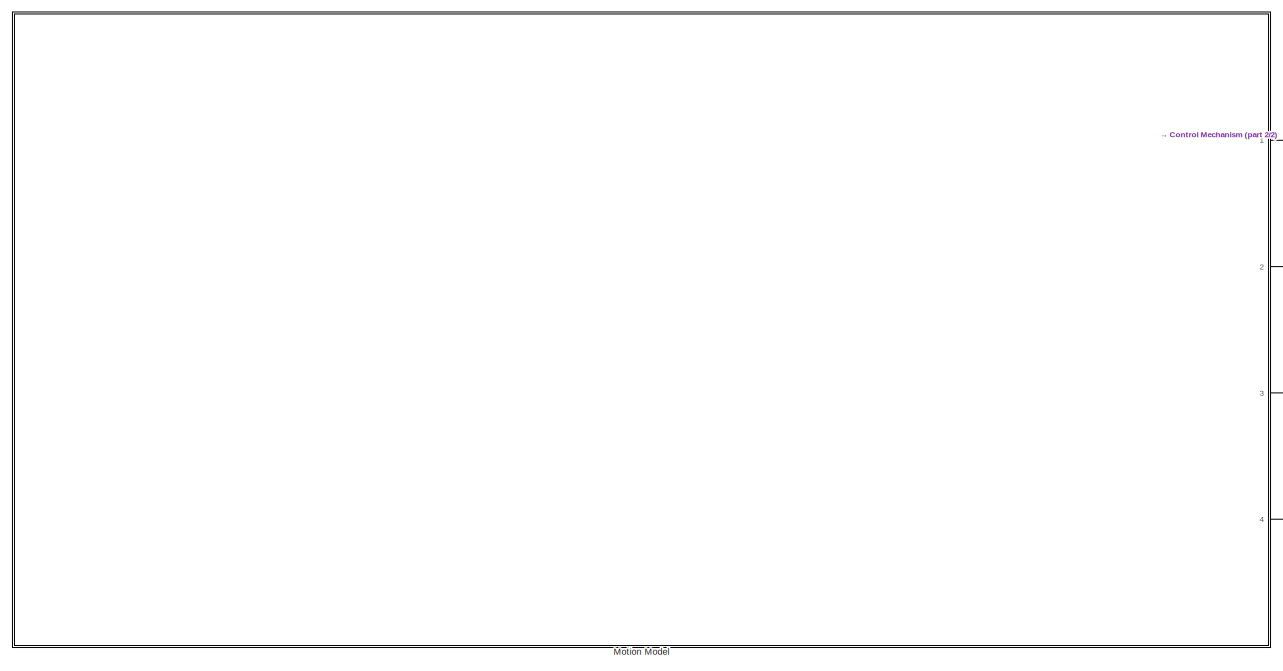
[diagram: root canvas - part 1/2, left side, full height]
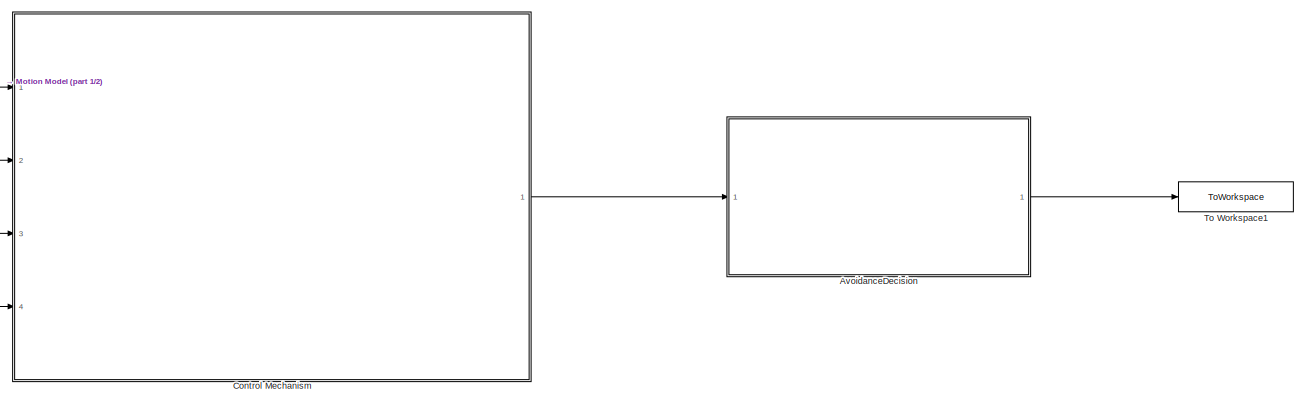
[diagram: root canvas - part 2/2, middle right region]
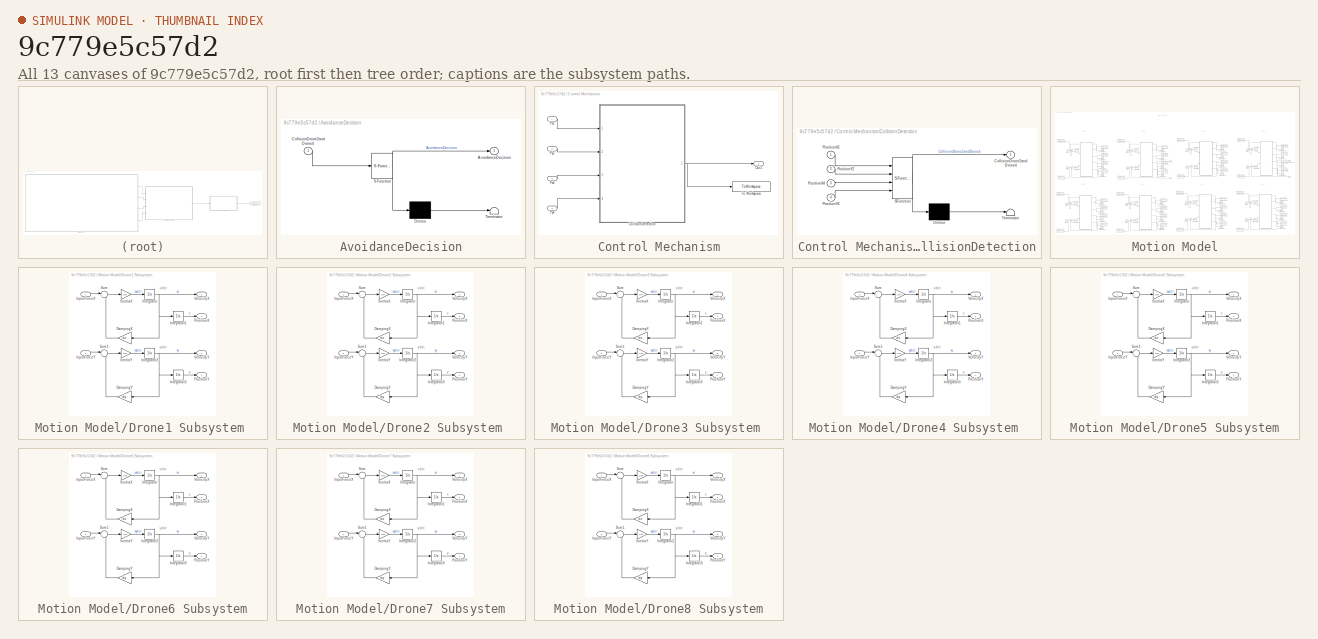
[diagram: thumbnail index - all 13 canvases of the model, root first then tree order]
MODEL slx_9c779e5c57d2
KIND model
CONFIG AbsTol = auto
CONFIG EnableMultiTasking = off
CONFIG FixedStep = auto
CONFIG MaxStep = auto
CONFIG MinStep = auto
CONFIG RelTol = 1e-3
CONFIG SampleTimeConstraint = Unconstrained
CONFIG Solver = VariableStepAuto
CONFIG SolverName = VariableStepAuto
CONFIG StartTime = tStart 
CONFIG StopTime = tFinal
BLOCK [SubSystem] AvoidanceDecision
  ErrorFcn = Stateflow.Translate.translate
  PermitHierarchicalResolution = ExplicitOnly
  Ports = [1, 1]
  RequestExecContextInheritance = off
  SFBlockType = MATLAB Function
  TreatAsAtomicUnit = on
BLOCK [Demux] AvoidanceDecision/ Demux 
  Outputs = 1
  Ports = [1, 1]
BLOCK [S-Function] AvoidanceDecision/ SFunction 
  EnableBusSupport = on
  FunctionName = sf_sfun
  PortCounts = [1 2]
  Ports = [1, 2]
  SFcnIsStateOwnerBlock = off
  SFunctionDeploymentMode = off
  Tag = Stateflow S-Function NetworkModelWithControl 1
BLOCK [Terminator] AvoidanceDecision/ Terminator 
BLOCK [Outport] AvoidanceDecision/AvoidanceDecision
  IconDisplay = Port number
BLOCK [Inport] AvoidanceDecision/CollisionDrone2andDrone4
  IconDisplay = Port number
BLOCK [SubSystem] Control Mechanism
  Ports = [4, 1]
  RequestExecContextInheritance = off
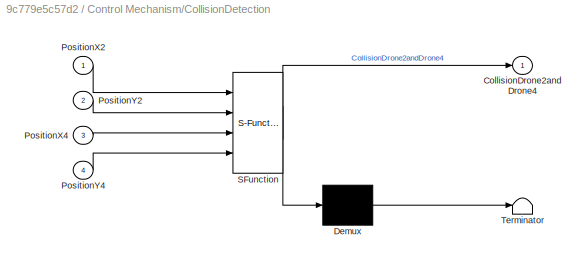
BLOCK [SubSystem] Control Mechanism/CollisionDetection
  ErrorFcn = Stateflow.Translate.translate
  PermitHierarchicalResolution = ExplicitOnly
  Ports = [4, 1]
  RequestExecContextInheritance = off
  SFBlockType = MATLAB Function
  TreatAsAtomicUnit = on
BLOCK [Demux] Control Mechanism/CollisionDetection/ Demux 
  Outputs = 1
  Ports = [1, 1]
BLOCK [S-Function] Control Mechanism/CollisionDetection/ SFunction 
  EnableBusSupport = on
  FunctionName = sf_sfun
  PortCounts = [4 2]
  Ports = [4, 2]
  SFcnIsStateOwnerBlock = off
  SFunctionDeploymentMode = off
  Tag = Stateflow S-Function NetworkModelWithControl 2
BLOCK [Terminator] Control Mechanism/CollisionDetection/ Terminator 
BLOCK [Outport] Control Mechanism/CollisionDetection/CollisionDrone2andDrone4
  IconDisplay = Port number
BLOCK [Inport] Control Mechanism/CollisionDetection/PositionX2
  IconDisplay = Port number
BLOCK [Inport] Control Mechanism/CollisionDetection/PositionX4
  IconDisplay = Port number
  Port = 3
BLOCK [Inport] Control Mechanism/CollisionDetection/PositionY2
  IconDisplay = Port number
  Port = 2
BLOCK [Inport] Control Mechanism/CollisionDetection/PositionY4
  IconDisplay = Port number
  Port = 4
BLOCK [Outport] Control Mechanism/Out1
  IconDisplay = Port number
BLOCK [Inport] Control Mechanism/Px2
  IconDisplay = Port number
BLOCK [Inport] Control Mechanism/Px4
  IconDisplay = Port number
  Port = 3
BLOCK [Inport] Control Mechanism/Py2
  IconDisplay = Port number
  Port = 2
BLOCK [Inport] Control Mechanism/Py4
  IconDisplay = Port number
  Port = 4
BLOCK [ToWorkspace] Control Mechanism/To Workspace
  FixptAsFi = on
  MaxDataPoints = inf
  Ports = [1]
  SampleTime = -1
  Save2DSignal = 3-D array (concatenate along third dimension)
  SaveFormat = Timeseries
  VariableName = CollisionDrone2andDrone4
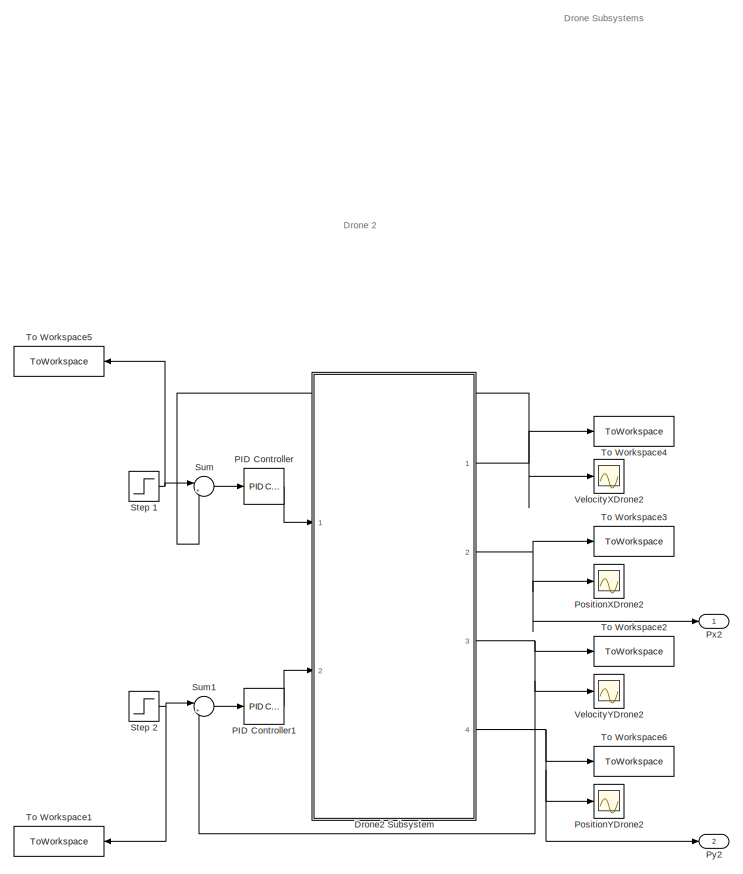
[diagram: Motion Model - part 1/5, top center region]
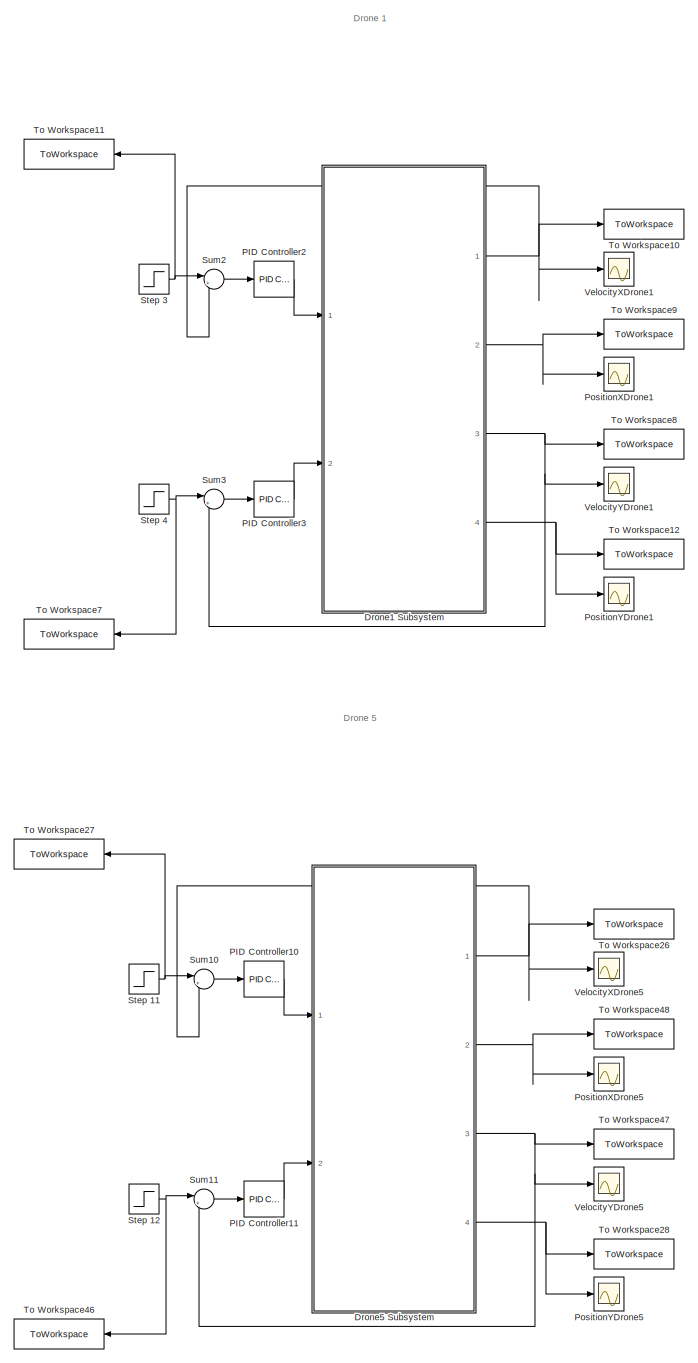
[diagram: Motion Model - part 2/5, left side, full height]
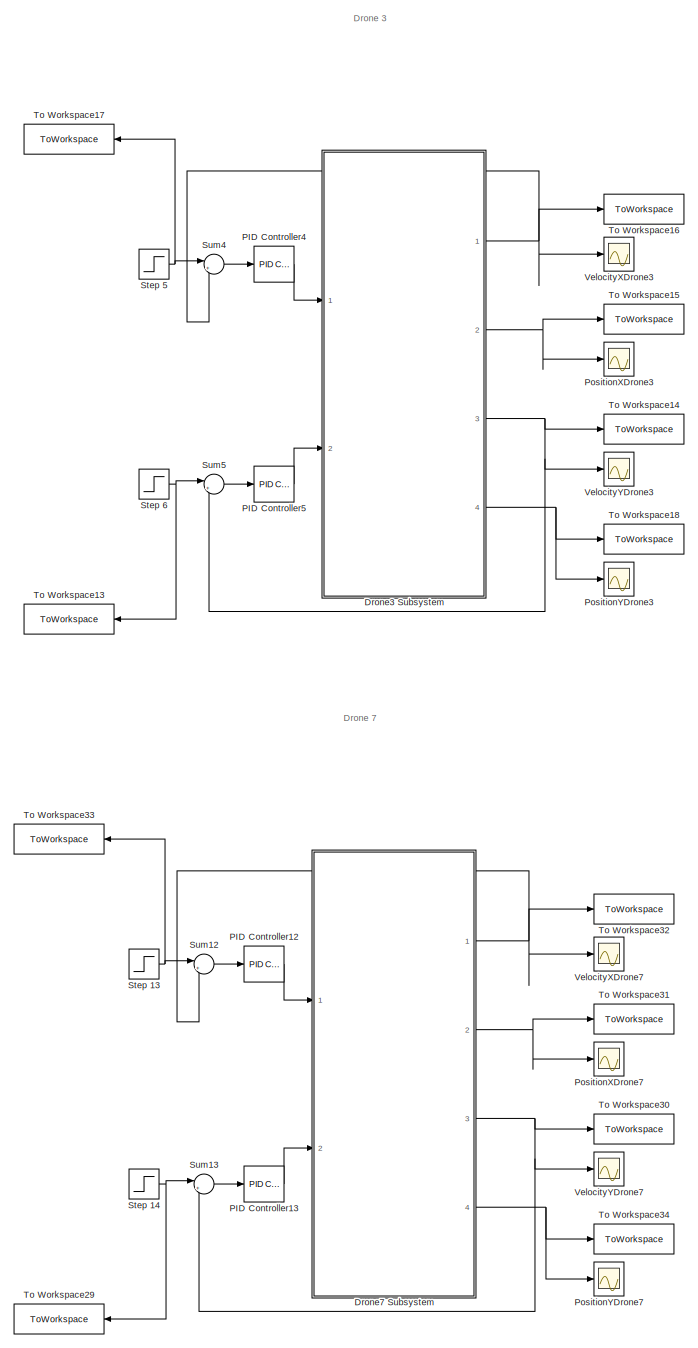
[diagram: Motion Model - part 3/5, center side, full height]
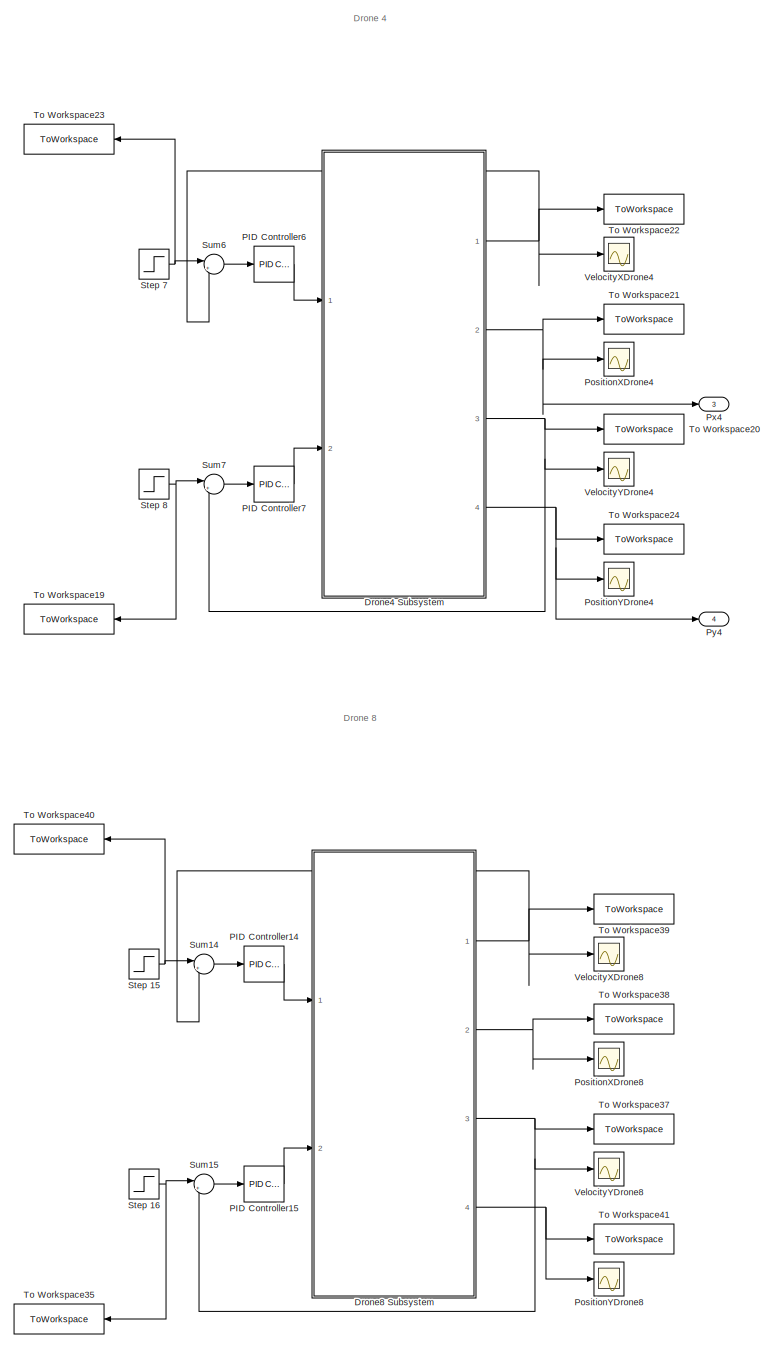
[diagram: Motion Model - part 4/5, right side, full height]
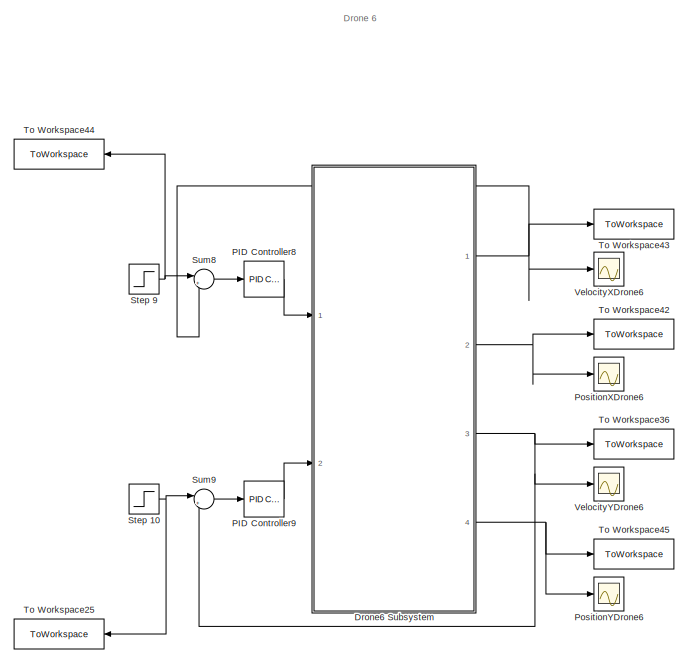
[diagram: Motion Model - part 5/5, bottom center region]
BLOCK [SubSystem] Motion Model
  Ports = [0, 4]
  RequestExecContextInheritance = off
BLOCK [SubSystem] Motion Model/Drone1 Subsystem 
  Ports = [2, 4]
  RequestExecContextInheritance = off
BLOCK [Gain] Motion Model/Drone1 Subsystem /DampingX 
  Gain = bx
  OutDataTypeStr = Inherit: Inherit via internal rule
  ParamDataTypeStr = Inherit: Inherit via internal rule
  SaturateOnIntegerOverflow = off
BLOCK [Gain] Motion Model/Drone1 Subsystem /DampingY
  Gain = by
  OutDataTypeStr = Inherit: Inherit via internal rule
  ParamDataTypeStr = Inherit: Inherit via internal rule
  SaturateOnIntegerOverflow = off
BLOCK [Gain] Motion Model/Drone1 Subsystem /InertiaX
  Gain = 1/m
  OutDataTypeStr = Inherit: Inherit via internal rule
  ParamDataTypeStr = Inherit: Inherit via internal rule
  SaturateOnIntegerOverflow = off
BLOCK [Gain] Motion Model/Drone1 Subsystem /InertiaY
  Gain = 1/m
  OutDataTypeStr = Inherit: Inherit via internal rule
  ParamDataTypeStr = Inherit: Inherit via internal rule
  SaturateOnIntegerOverflow = off
BLOCK [Inport] Motion Model/Drone1 Subsystem /InputForceX
  IconDisplay = Port number
BLOCK [Inport] Motion Model/Drone1 Subsystem /InputForceY
  IconDisplay = Port number
  Port = 2
BLOCK [Integrator] Motion Model/Drone1 Subsystem /Integrator
  InitialCondition = vx10
  Ports = [1, 1]
BLOCK [Integrator] Motion Model/Drone1 Subsystem /Integrator1
  InitialCondition = x10
  Ports = [1, 1]
BLOCK [Integrator] Motion Model/Drone1 Subsystem /Integrator2
  InitialCondition = vy10
  Ports = [1, 1]
BLOCK [Integrator] Motion Model/Drone1 Subsystem /Integrator3
  InitialCondition = y10
  Ports = [1, 1]
BLOCK [Outport] Motion Model/Drone1 Subsystem /PositionX
  IconDisplay = Port number
  Port = 2
BLOCK [Outport] Motion Model/Drone1 Subsystem /PositionY
  IconDisplay = Port number
  Port = 4
BLOCK [Sum] Motion Model/Drone1 Subsystem /Sum
  IconShape = round
  InputSameDT = off
  Inputs = |+-
  OutDataTypeStr = Inherit: Inherit via internal rule
  Ports = [2, 1]
  SaturateOnIntegerOverflow = off
BLOCK [Sum] Motion Model/Drone1 Subsystem /Sum1
  IconShape = round
  InputSameDT = off
  Inputs = |+-
  OutDataTypeStr = Inherit: Inherit via internal rule
  Ports = [2, 1]
  SaturateOnIntegerOverflow = off
BLOCK [Outport] Motion Model/Drone1 Subsystem /VelocityX
  IconDisplay = Port number
BLOCK [Outport] Motion Model/Drone1 Subsystem /VelocityY
  IconDisplay = Port number
  Port = 3
BLOCK [SubSystem] Motion Model/Drone2 Subsystem 
  Ports = [2, 4]
  RequestExecContextInheritance = off
BLOCK [Gain] Motion Model/Drone2 Subsystem /DampingX 
  Gain = bx
  OutDataTypeStr = Inherit: Inherit via internal rule
  ParamDataTypeStr = Inherit: Inherit via internal rule
  SaturateOnIntegerOverflow = off
BLOCK [Gain] Motion Model/Drone2 Subsystem /DampingY
  Gain = by
  OutDataTypeStr = Inherit: Inherit via internal rule
  ParamDataTypeStr = Inherit: Inherit via internal rule
  SaturateOnIntegerOverflow = off
BLOCK [Gain] Motion Model/Drone2 Subsystem /InertiaX
  Gain = 1/m
  OutDataTypeStr = Inherit: Inherit via internal rule
  ParamDataTypeStr = Inherit: Inherit via internal rule
  SaturateOnIntegerOverflow = off
BLOCK [Gain] Motion Model/Drone2 Subsystem /InertiaY
  Gain = 1/m
  OutDataTypeStr = Inherit: Inherit via internal rule
  ParamDataTypeStr = Inherit: Inherit via internal rule
  SaturateOnIntegerOverflow = off
BLOCK [Inport] Motion Model/Drone2 Subsystem /InputForceX
  IconDisplay = Port number
BLOCK [Inport] Motion Model/Drone2 Subsystem /InputForceY
  IconDisplay = Port number
  Port = 2
BLOCK [Integrator] Motion Model/Drone2 Subsystem /Integrator
  InitialCondition = vx20
  Ports = [1, 1]
BLOCK [Integrator] Motion Model/Drone2 Subsystem /Integrator1
  InitialCondition = x20
  Ports = [1, 1]
BLOCK [Integrator] Motion Model/Drone2 Subsystem /Integrator2
  InitialCondition = vy20
  Ports = [1, 1]
BLOCK [Integrator] Motion Model/Drone2 Subsystem /Integrator3
  InitialCondition = y20
  Ports = [1, 1]
BLOCK [Outport] Motion Model/Drone2 Subsystem /PositionX
  IconDisplay = Port number
  Port = 2
BLOCK [Outport] Motion Model/Drone2 Subsystem /PositionY
  IconDisplay = Port number
  Port = 4
BLOCK [Sum] Motion Model/Drone2 Subsystem /Sum
  IconShape = round
  InputSameDT = off
  Inputs = |+-
  OutDataTypeStr = Inherit: Inherit via internal rule
  Ports = [2, 1]
  SaturateOnIntegerOverflow = off
BLOCK [Sum] Motion Model/Drone2 Subsystem /Sum1
  IconShape = round
  InputSameDT = off
  Inputs = |+-
  OutDataTypeStr = Inherit: Inherit via internal rule
  Ports = [2, 1]
  SaturateOnIntegerOverflow = off
BLOCK [Outport] Motion Model/Drone2 Subsystem /VelocityX
  IconDisplay = Port number
BLOCK [Outport] Motion Model/Drone2 Subsystem /VelocityY
  IconDisplay = Port number
  Port = 3
BLOCK [SubSystem] Motion Model/Drone3 Subsystem 
  Ports = [2, 4]
  RequestExecContextInheritance = off
BLOCK [Gain] Motion Model/Drone3 Subsystem /DampingX 
  Gain = bx
  OutDataTypeStr = Inherit: Inherit via internal rule
  ParamDataTypeStr = Inherit: Inherit via internal rule
  SaturateOnIntegerOverflow = off
BLOCK [Gain] Motion Model/Drone3 Subsystem /DampingY
  Gain = by
  OutDataTypeStr = Inherit: Inherit via internal rule
  ParamDataTypeStr = Inherit: Inherit via internal rule
  SaturateOnIntegerOverflow = off
BLOCK [Gain] Motion Model/Drone3 Subsystem /InertiaX
  Gain = 1/m
  OutDataTypeStr = Inherit: Inherit via internal rule
  ParamDataTypeStr = Inherit: Inherit via internal rule
  SaturateOnIntegerOverflow = off
BLOCK [Gain] Motion Model/Drone3 Subsystem /InertiaY
  Gain = 1/m
  OutDataTypeStr = Inherit: Inherit via internal rule
  ParamDataTypeStr = Inherit: Inherit via internal rule
  SaturateOnIntegerOverflow = off
BLOCK [Inport] Motion Model/Drone3 Subsystem /InputForceX
  IconDisplay = Port number
BLOCK [Inport] Motion Model/Drone3 Subsystem /InputForceY
  IconDisplay = Port number
  Port = 2
BLOCK [Integrator] Motion Model/Drone3 Subsystem /Integrator
  InitialCondition = vx30
  Ports = [1, 1]
BLOCK [Integrator] Motion Model/Drone3 Subsystem /Integrator1
  InitialCondition = x30
  Ports = [1, 1]
BLOCK [Integrator] Motion Model/Drone3 Subsystem /Integrator2
  InitialCondition = vy30
  Ports = [1, 1]
BLOCK [Integrator] Motion Model/Drone3 Subsystem /Integrator3
  InitialCondition = y30
  Ports = [1, 1]
BLOCK [Outport] Motion Model/Drone3 Subsystem /PositionX
  IconDisplay = Port number
  Port = 2
BLOCK [Outport] Motion Model/Drone3 Subsystem /PositionY
  IconDisplay = Port number
  Port = 4
BLOCK [Sum] Motion Model/Drone3 Subsystem /Sum
  IconShape = round
  InputSameDT = off
  Inputs = |+-
  OutDataTypeStr = Inherit: Inherit via internal rule
  Ports = [2, 1]
  SaturateOnIntegerOverflow = off
BLOCK [Sum] Motion Model/Drone3 Subsystem /Sum1
  IconShape = round
  InputSameDT = off
  Inputs = |+-
  OutDataTypeStr = Inherit: Inherit via internal rule
  Ports = [2, 1]
  SaturateOnIntegerOverflow = off
BLOCK [Outport] Motion Model/Drone3 Subsystem /VelocityX
  IconDisplay = Port number
BLOCK [Outport] Motion Model/Drone3 Subsystem /VelocityY
  IconDisplay = Port number
  Port = 3
BLOCK [SubSystem] Motion Model/Drone4 Subsystem 
  Ports = [2, 4]
  RequestExecContextInheritance = off
BLOCK [Gain] Motion Model/Drone4 Subsystem /DampingX 
  Gain = bx
  OutDataTypeStr = Inherit: Inherit via internal rule
  ParamDataTypeStr = Inherit: Inherit via internal rule
  SaturateOnIntegerOverflow = off
BLOCK [Gain] Motion Model/Drone4 Subsystem /DampingY
  Gain = by
  OutDataTypeStr = Inherit: Inherit via internal rule
  ParamDataTypeStr = Inherit: Inherit via internal rule
  SaturateOnIntegerOverflow = off
BLOCK [Gain] Motion Model/Drone4 Subsystem /InertiaX
  Gain = 1/m
  OutDataTypeStr = Inherit: Inherit via internal rule
  ParamDataTypeStr = Inherit: Inherit via internal rule
  SaturateOnIntegerOverflow = off
BLOCK [Gain] Motion Model/Drone4 Subsystem /InertiaY
  Gain = 1/m
  OutDataTypeStr = Inherit: Inherit via internal rule
  ParamDataTypeStr = Inherit: Inherit via internal rule
  SaturateOnIntegerOverflow = off
BLOCK [Inport] Motion Model/Drone4 Subsystem /InputForceX
  IconDisplay = Port number
BLOCK [Inport] Motion Model/Drone4 Subsystem /InputForceY
  IconDisplay = Port number
  Port = 2
BLOCK [Integrator] Motion Model/Drone4 Subsystem /Integrator
  InitialCondition = vx40
  Ports = [1, 1]
BLOCK [Integrator] Motion Model/Drone4 Subsystem /Integrator1
  InitialCondition = x40
  Ports = [1, 1]
BLOCK [Integrator] Motion Model/Drone4 Subsystem /Integrator2
  InitialCondition = vy40
  Ports = [1, 1]
BLOCK [Integrator] Motion Model/Drone4 Subsystem /Integrator3
  InitialCondition = y40
  Ports = [1, 1]
BLOCK [Outport] Motion Model/Drone4 Subsystem /PositionX
  IconDisplay = Port number
  Port = 2
BLOCK [Outport] Motion Model/Drone4 Subsystem /PositionY
  IconDisplay = Port number
  Port = 4
BLOCK [Sum] Motion Model/Drone4 Subsystem /Sum
  IconShape = round
  InputSameDT = off
  Inputs = |+-
  OutDataTypeStr = Inherit: Inherit via internal rule
  Ports = [2, 1]
  SaturateOnIntegerOverflow = off
BLOCK [Sum] Motion Model/Drone4 Subsystem /Sum1
  IconShape = round
  InputSameDT = off
  Inputs = |+-
  OutDataTypeStr = Inherit: Inherit via internal rule
  Ports = [2, 1]
  SaturateOnIntegerOverflow = off
BLOCK [Outport] Motion Model/Drone4 Subsystem /VelocityX
  IconDisplay = Port number
BLOCK [Outport] Motion Model/Drone4 Subsystem /VelocityY
  IconDisplay = Port number
  Port = 3
BLOCK [SubSystem] Motion Model/Drone5 Subsystem
  Ports = [2, 4]
  RequestExecContextInheritance = off
BLOCK [Gain] Motion Model/Drone5 Subsystem/DampingX 
  Gain = bx
  OutDataTypeStr = Inherit: Inherit via internal rule
  ParamDataTypeStr = Inherit: Inherit via internal rule
  SaturateOnIntegerOverflow = off
BLOCK [Gain] Motion Model/Drone5 Subsystem/DampingY
  Gain = by
  OutDataTypeStr = Inherit: Inherit via internal rule
  ParamDataTypeStr = Inherit: Inherit via internal rule
  SaturateOnIntegerOverflow = off
BLOCK [Gain] Motion Model/Drone5 Subsystem/InertiaX
  Gain = 1/m
  OutDataTypeStr = Inherit: Inherit via internal rule
  ParamDataTypeStr = Inherit: Inherit via internal rule
  SaturateOnIntegerOverflow = off
BLOCK [Gain] Motion Model/Drone5 Subsystem/InertiaY
  Gain = 1/m
  OutDataTypeStr = Inherit: Inherit via internal rule
  ParamDataTypeStr = Inherit: Inherit via internal rule
  SaturateOnIntegerOverflow = off
BLOCK [Inport] Motion Model/Drone5 Subsystem/InputForceX
  IconDisplay = Port number
BLOCK [Inport] Motion Model/Drone5 Subsystem/InputForceY
  IconDisplay = Port number
  Port = 2
BLOCK [Integrator] Motion Model/Drone5 Subsystem/Integrator
  InitialCondition = vx50
  Ports = [1, 1]
BLOCK [Integrator] Motion Model/Drone5 Subsystem/Integrator1
  InitialCondition = x50
  Ports = [1, 1]
BLOCK [Integrator] Motion Model/Drone5 Subsystem/Integrator2
  InitialCondition = vy50
  Ports = [1, 1]
BLOCK [Integrator] Motion Model/Drone5 Subsystem/Integrator3
  InitialCondition = y50
  Ports = [1, 1]
BLOCK [Outport] Motion Model/Drone5 Subsystem/PositionX
  IconDisplay = Port number
  Port = 2
BLOCK [Outport] Motion Model/Drone5 Subsystem/PositionY
  IconDisplay = Port number
  Port = 4
BLOCK [Sum] Motion Model/Drone5 Subsystem/Sum
  IconShape = round
  InputSameDT = off
  Inputs = |+-
  OutDataTypeStr = Inherit: Inherit via internal rule
  Ports = [2, 1]
  SaturateOnIntegerOverflow = off
BLOCK [Sum] Motion Model/Drone5 Subsystem/Sum1
  IconShape = round
  InputSameDT = off
  Inputs = |+-
  OutDataTypeStr = Inherit: Inherit via internal rule
  Ports = [2, 1]
  SaturateOnIntegerOverflow = off
BLOCK [Outport] Motion Model/Drone5 Subsystem/VelocityX
  IconDisplay = Port number
BLOCK [Outport] Motion Model/Drone5 Subsystem/VelocityY
  IconDisplay = Port number
  Port = 3
BLOCK [SubSystem] Motion Model/Drone6 Subsystem
  Ports = [2, 4]
  RequestExecContextInheritance = off
BLOCK [Gain] Motion Model/Drone6 Subsystem/DampingX 
  Gain = bx
  OutDataTypeStr = Inherit: Inherit via internal rule
  ParamDataTypeStr = Inherit: Inherit via internal rule
  SaturateOnIntegerOverflow = off
BLOCK [Gain] Motion Model/Drone6 Subsystem/DampingY
  Gain = by
  OutDataTypeStr = Inherit: Inherit via internal rule
  ParamDataTypeStr = Inherit: Inherit via internal rule
  SaturateOnIntegerOverflow = off
BLOCK [Gain] Motion Model/Drone6 Subsystem/InertiaX
  Gain = 1/m
  OutDataTypeStr = Inherit: Inherit via internal rule
  ParamDataTypeStr = Inherit: Inherit via internal rule
  SaturateOnIntegerOverflow = off
BLOCK [Gain] Motion Model/Drone6 Subsystem/InertiaY
  Gain = 1/m
  OutDataTypeStr = Inherit: Inherit via internal rule
  ParamDataTypeStr = Inherit: Inherit via internal rule
  SaturateOnIntegerOverflow = off
BLOCK [Inport] Motion Model/Drone6 Subsystem/InputForceX
  IconDisplay = Port number
BLOCK [Inport] Motion Model/Drone6 Subsystem/InputForceY
  IconDisplay = Port number
  Port = 2
BLOCK [Integrator] Motion Model/Drone6 Subsystem/Integrator
  InitialCondition = vx60
  Ports = [1, 1]
BLOCK [Integrator] Motion Model/Drone6 Subsystem/Integrator1
  InitialCondition = x60
  Ports = [1, 1]
BLOCK [Integrator] Motion Model/Drone6 Subsystem/Integrator2
  InitialCondition = vy60
  Ports = [1, 1]
BLOCK [Integrator] Motion Model/Drone6 Subsystem/Integrator3
  InitialCondition = y60
  Ports = [1, 1]
BLOCK [Outport] Motion Model/Drone6 Subsystem/PositionX
  IconDisplay = Port number
  Port = 2
BLOCK [Outport] Motion Model/Drone6 Subsystem/PositionY
  IconDisplay = Port number
  Port = 4
BLOCK [Sum] Motion Model/Drone6 Subsystem/Sum
  IconShape = round
  InputSameDT = off
  Inputs = |+-
  OutDataTypeStr = Inherit: Inherit via internal rule
  Ports = [2, 1]
  SaturateOnIntegerOverflow = off
BLOCK [Sum] Motion Model/Drone6 Subsystem/Sum1
  IconShape = round
  InputSameDT = off
  Inputs = |+-
  OutDataTypeStr = Inherit: Inherit via internal rule
  Ports = [2, 1]
  SaturateOnIntegerOverflow = off
BLOCK [Outport] Motion Model/Drone6 Subsystem/VelocityX
  IconDisplay = Port number
BLOCK [Outport] Motion Model/Drone6 Subsystem/VelocityY
  IconDisplay = Port number
  Port = 3
BLOCK [SubSystem] Motion Model/Drone7 Subsystem
  Ports = [2, 4]
  RequestExecContextInheritance = off
BLOCK [Gain] Motion Model/Drone7 Subsystem/DampingX 
  Gain = bx
  OutDataTypeStr = Inherit: Inherit via internal rule
  ParamDataTypeStr = Inherit: Inherit via internal rule
  SaturateOnIntegerOverflow = off
BLOCK [Gain] Motion Model/Drone7 Subsystem/DampingY
  Gain = by
  OutDataTypeStr = Inherit: Inherit via internal rule
  ParamDataTypeStr = Inherit: Inherit via internal rule
  SaturateOnIntegerOverflow = off
BLOCK [Gain] Motion Model/Drone7 Subsystem/InertiaX
  Gain = 1/m
  OutDataTypeStr = Inherit: Inherit via internal rule
  ParamDataTypeStr = Inherit: Inherit via internal rule
  SaturateOnIntegerOverflow = off
BLOCK [Gain] Motion Model/Drone7 Subsystem/InertiaY
  Gain = 1/m
  OutDataTypeStr = Inherit: Inherit via internal rule
  ParamDataTypeStr = Inherit: Inherit via internal rule
  SaturateOnIntegerOverflow = off
BLOCK [Inport] Motion Model/Drone7 Subsystem/InputForceX
  IconDisplay = Port number
BLOCK [Inport] Motion Model/Drone7 Subsystem/InputForceY
  IconDisplay = Port number
  Port = 2
BLOCK [Integrator] Motion Model/Drone7 Subsystem/Integrator
  InitialCondition = vx70
  Ports = [1, 1]
BLOCK [Integrator] Motion Model/Drone7 Subsystem/Integrator1
  InitialCondition = x70
  Ports = [1, 1]
BLOCK [Integrator] Motion Model/Drone7 Subsystem/Integrator2
  InitialCondition = vy70
  Ports = [1, 1]
BLOCK [Integrator] Motion Model/Drone7 Subsystem/Integrator3
  InitialCondition = y70
  Ports = [1, 1]
BLOCK [Outport] Motion Model/Drone7 Subsystem/PositionX
  IconDisplay = Port number
  Port = 2
BLOCK [Outport] Motion Model/Drone7 Subsystem/PositionY
  IconDisplay = Port number
  Port = 4
BLOCK [Sum] Motion Model/Drone7 Subsystem/Sum
  IconShape = round
  InputSameDT = off
  Inputs = |+-
  OutDataTypeStr = Inherit: Inherit via internal rule
  Ports = [2, 1]
  SaturateOnIntegerOverflow = off
BLOCK [Sum] Motion Model/Drone7 Subsystem/Sum1
  IconShape = round
  InputSameDT = off
  Inputs = |+-
  OutDataTypeStr = Inherit: Inherit via internal rule
  Ports = [2, 1]
  SaturateOnIntegerOverflow = off
BLOCK [Outport] Motion Model/Drone7 Subsystem/VelocityX
  IconDisplay = Port number
BLOCK [Outport] Motion Model/Drone7 Subsystem/VelocityY
  IconDisplay = Port number
  Port = 3
BLOCK [SubSystem] Motion Model/Drone8 Subsystem
  Ports = [2, 4]
  RequestExecContextInheritance = off
BLOCK [Gain] Motion Model/Drone8 Subsystem/DampingX 
  Gain = bx
  OutDataTypeStr = Inherit: Inherit via internal rule
  ParamDataTypeStr = Inherit: Inherit via internal rule
  SaturateOnIntegerOverflow = off
BLOCK [Gain] Motion Model/Drone8 Subsystem/DampingY
  Gain = by
  OutDataTypeStr = Inherit: Inherit via internal rule
  ParamDataTypeStr = Inherit: Inherit via internal rule
  SaturateOnIntegerOverflow = off
BLOCK [Gain] Motion Model/Drone8 Subsystem/InertiaX
  Gain = 1/m
  OutDataTypeStr = Inherit: Inherit via internal rule
  ParamDataTypeStr = Inherit: Inherit via internal rule
  SaturateOnIntegerOverflow = off
BLOCK [Gain] Motion Model/Drone8 Subsystem/InertiaY
  Gain = 1/m
  OutDataTypeStr = Inherit: Inherit via internal rule
  ParamDataTypeStr = Inherit: Inherit via internal rule
  SaturateOnIntegerOverflow = off
BLOCK [Inport] Motion Model/Drone8 Subsystem/InputForceX
  IconDisplay = Port number
BLOCK [Inport] Motion Model/Drone8 Subsystem/InputForceY
  IconDisplay = Port number
  Port = 2
BLOCK [Integrator] Motion Model/Drone8 Subsystem/Integrator
  InitialCondition = vx80
  Ports = [1, 1]
BLOCK [Integrator] Motion Model/Drone8 Subsystem/Integrator1
  InitialCondition = x80
  Ports = [1, 1]
BLOCK [Integrator] Motion Model/Drone8 Subsystem/Integrator2
  InitialCondition = vy80
  Ports = [1, 1]
BLOCK [Integrator] Motion Model/Drone8 Subsystem/Integrator3
  InitialCondition = y80
  Ports = [1, 1]
BLOCK [Outport] Motion Model/Drone8 Subsystem/PositionX
  IconDisplay = Port number
  Port = 2
BLOCK [Outport] Motion Model/Drone8 Subsystem/PositionY
  IconDisplay = Port number
  Port = 4
BLOCK [Sum] Motion Model/Drone8 Subsystem/Sum
  IconShape = round
  InputSameDT = off
  Inputs = |+-
  OutDataTypeStr = Inherit: Inherit via internal rule
  Ports = [2, 1]
  SaturateOnIntegerOverflow = off
BLOCK [Sum] Motion Model/Drone8 Subsystem/Sum1
  IconShape = round
  InputSameDT = off
  Inputs = |+-
  OutDataTypeStr = Inherit: Inherit via internal rule
  Ports = [2, 1]
  SaturateOnIntegerOverflow = off
BLOCK [Outport] Motion Model/Drone8 Subsystem/VelocityX
  IconDisplay = Port number
BLOCK [Outport] Motion Model/Drone8 Subsystem/VelocityY
  IconDisplay = Port number
  Port = 3
BLOCK [Reference] Motion Model/PID Controller  REF=simulink/Continuous/PID Controller
  Ports = [1, 1]
  SourceBlock = simulink/Continuous/PID Controller
  SourceProductBaseCode = SL
  SourceProductName = Simulink
  SourceType = PID 1dof
BLOCK [Reference] Motion Model/PID Controller1  REF=simulink/Continuous/PID Controller
  Ports = [1, 1]
  SourceBlock = simulink/Continuous/PID Controller
  SourceProductBaseCode = SL
  SourceProductName = Simulink
  SourceType = PID 1dof
BLOCK [Reference] Motion Model/PID Controller10  REF=simulink/Continuous/PID Controller
  Ports = [1, 1]
  SourceBlock = simulink/Continuous/PID Controller
  SourceProductBaseCode = SL
  SourceProductName = Simulink
  SourceType = PID 1dof
BLOCK [Reference] Motion Model/PID Controller11  REF=simulink/Continuous/PID Controller
  Ports = [1, 1]
  SourceBlock = simulink/Continuous/PID Controller
  SourceProductBaseCode = SL
  SourceProductName = Simulink
  SourceType = PID 1dof
BLOCK [Reference] Motion Model/PID Controller12  REF=simulink/Continuous/PID Controller
  Ports = [1, 1]
  SourceBlock = simulink/Continuous/PID Controller
  SourceProductBaseCode = SL
  SourceProductName = Simulink
  SourceType = PID 1dof
BLOCK [Reference] Motion Model/PID Controller13  REF=simulink/Continuous/PID Controller
  Ports = [1, 1]
  SourceBlock = simulink/Continuous/PID Controller
  SourceProductBaseCode = SL
  SourceProductName = Simulink
  SourceType = PID 1dof
BLOCK [Reference] Motion Model/PID Controller14  REF=simulink/Continuous/PID Controller
  Ports = [1, 1]
  SourceBlock = simulink/Continuous/PID Controller
  SourceProductBaseCode = SL
  SourceProductName = Simulink
  SourceType = PID 1dof
BLOCK [Reference] Motion Model/PID Controller15  REF=simulink/Continuous/PID Controller
  Ports = [1, 1]
  SourceBlock = simulink/Continuous/PID Controller
  SourceProductBaseCode = SL
  SourceProductName = Simulink
  SourceType = PID 1dof
BLOCK [Reference] Motion Model/PID Controller2  REF=simulink/Continuous/PID Controller
  Ports = [1, 1]
  SourceBlock = simulink/Continuous/PID Controller
  SourceProductBaseCode = SL
  SourceProductName = Simulink
  SourceType = PID 1dof
BLOCK [Reference] Motion Model/PID Controller3  REF=simulink/Continuous/PID Controller
  Ports = [1, 1]
  SourceBlock = simulink/Continuous/PID Controller
  SourceProductBaseCode = SL
  SourceProductName = Simulink
  SourceType = PID 1dof
BLOCK [Reference] Motion Model/PID Controller4  REF=simulink/Continuous/PID Controller
  Ports = [1, 1]
  SourceBlock = simulink/Continuous/PID Controller
  SourceProductBaseCode = SL
  SourceProductName = Simulink
  SourceType = PID 1dof
BLOCK [Reference] Motion Model/PID Controller5  REF=simulink/Continuous/PID Controller
  Ports = [1, 1]
  SourceBlock = simulink/Continuous/PID Controller
  SourceProductBaseCode = SL
  SourceProductName = Simulink
  SourceType = PID 1dof
BLOCK [Reference] Motion Model/PID Controller6  REF=simulink/Continuous/PID Controller
  Ports = [1, 1]
  SourceBlock = simulink/Continuous/PID Controller
  SourceProductBaseCode = SL
  SourceProductName = Simulink
  SourceType = PID 1dof
BLOCK [Reference] Motion Model/PID Controller7  REF=simulink/Continuous/PID Controller
  Ports = [1, 1]
  SourceBlock = simulink/Continuous/PID Controller
  SourceProductBaseCode = SL
  SourceProductName = Simulink
  SourceType = PID 1dof
BLOCK [Reference] Motion Model/PID Controller8  REF=simulink/Continuous/PID Controller
  Ports = [1, 1]
  SourceBlock = simulink/Continuous/PID Controller
  SourceProductBaseCode = SL
  SourceProductName = Simulink
  SourceType = PID 1dof
BLOCK [Reference] Motion Model/PID Controller9  REF=simulink/Continuous/PID Controller
  Ports = [1, 1]
  SourceBlock = simulink/Continuous/PID Controller
  SourceProductBaseCode = SL
  SourceProductName = Simulink
  SourceType = PID 1dof
BLOCK [Scope] Motion Model/PositionXDrone1
  Floating = off
  NumInputPorts = 1
  Ports = [1]
  ScopeSpecificationString = Simulink.scopes.TimeScopeBlockCfg('CurrentConfiguration', extmgr.ConfigurationSet(extmgr.Configuration('Core','General UI',true),extmgr.Configuration('Core','Source UI',true),extmgr.Configuration('Sources','WiredSimulink',true,'DataLoggingVariableName','ScopeData1'),extmgr.Configuration('Visuals','Time Domain',true,'SerializedDisplays',{struct('MinYLimReal','-75.81743','MaxYLimReal','8.42416','YLa...<+1453ch>
BLOCK [Scope] Motion Model/PositionXDrone2
  Floating = off
  NumInputPorts = 1
  Ports = [1]
  ScopeSpecificationString = Simulink.scopes.TimeScopeBlockCfg('CurrentConfiguration', extmgr.ConfigurationSet(extmgr.Configuration('Core','General UI',true),extmgr.Configuration('Core','Source UI',true),extmgr.Configuration('Sources','WiredSimulink',true,'DataLoggingVariableName','ScopeData2'),extmgr.Configuration('Visuals','Time Domain',true,'SerializedDisplays',{struct('MinYLimReal','-75.81743','MaxYLimReal','8.42416','YLa...<+1453ch>
BLOCK [Scope] Motion Model/PositionXDrone3
  Floating = off
  NumInputPorts = 1
  Ports = [1]
  ScopeSpecificationString = Simulink.scopes.TimeScopeBlockCfg('CurrentConfiguration', extmgr.ConfigurationSet(extmgr.Configuration('Core','General UI',true),extmgr.Configuration('Core','Source UI',true),extmgr.Configuration('Sources','WiredSimulink',true,'DataLoggingVariableName','ScopeData3'),extmgr.Configuration('Visuals','Time Domain',true,'SerializedDisplays',{struct('MinYLimReal','-75.81743','MaxYLimReal','8.42416','YLa...<+1453ch>
BLOCK [Scope] Motion Model/PositionXDrone4
  Floating = off
  NumInputPorts = 1
  Ports = [1]
  ScopeSpecificationString = Simulink.scopes.TimeScopeBlockCfg('CurrentConfiguration', extmgr.ConfigurationSet(extmgr.Configuration('Core','General UI',true),extmgr.Configuration('Core','Source UI',true),extmgr.Configuration('Sources','WiredSimulink',true,'DataLoggingVariableName','ScopeData4'),extmgr.Configuration('Visuals','Time Domain',true,'SerializedDisplays',{struct('MinYLimReal','-75.81743','MaxYLimReal','8.42416','YLa...<+1453ch>
BLOCK [Scope] Motion Model/PositionXDrone5
  Floating = off
  NumInputPorts = 1
  Ports = [1]
  ScopeSpecificationString = Simulink.scopes.TimeScopeBlockCfg('CurrentConfiguration', extmgr.ConfigurationSet(extmgr.Configuration('Core','General UI',true),extmgr.Configuration('Core','Source UI',true),extmgr.Configuration('Sources','WiredSimulink',true,'DataLoggingVariableName','ScopeData5'),extmgr.Configuration('Visuals','Time Domain',true,'SerializedDisplays',{struct('MinYLimReal','-75.81743','MaxYLimReal','8.42416','YLa...<+1453ch>
BLOCK [Scope] Motion Model/PositionXDrone6
  Floating = off
  NumInputPorts = 1
  Ports = [1]
  ScopeSpecificationString = Simulink.scopes.TimeScopeBlockCfg('CurrentConfiguration', extmgr.ConfigurationSet(extmgr.Configuration('Core','General UI',true),extmgr.Configuration('Core','Source UI',true),extmgr.Configuration('Sources','WiredSimulink',true,'DataLoggingVariableName','ScopeData6'),extmgr.Configuration('Visuals','Time Domain',true,'SerializedDisplays',{struct('MinYLimReal','-75.81743','MaxYLimReal','8.42416','YLa...<+1453ch>
BLOCK [Scope] Motion Model/PositionXDrone7
  Floating = off
  NumInputPorts = 1
  Ports = [1]
  ScopeSpecificationString = Simulink.scopes.TimeScopeBlockCfg('CurrentConfiguration', extmgr.ConfigurationSet(extmgr.Configuration('Core','General UI',true),extmgr.Configuration('Core','Source UI',true),extmgr.Configuration('Sources','WiredSimulink',true,'DataLoggingVariableName','ScopeData7'),extmgr.Configuration('Visuals','Time Domain',true,'SerializedDisplays',{struct('MinYLimReal','-75.81743','MaxYLimReal','8.42416','YLa...<+1453ch>
BLOCK [Scope] Motion Model/PositionXDrone8
  Floating = off
  NumInputPorts = 1
  Ports = [1]
  ScopeSpecificationString = Simulink.scopes.TimeScopeBlockCfg('CurrentConfiguration', extmgr.ConfigurationSet(extmgr.Configuration('Core','General UI',true),extmgr.Configuration('Core','Source UI',true),extmgr.Configuration('Sources','WiredSimulink',true,'DataLoggingVariableName','ScopeData8'),extmgr.Configuration('Visuals','Time Domain',true,'SerializedDisplays',{struct('MinYLimReal','-75.81743','MaxYLimReal','8.42416','YLa...<+1453ch>
BLOCK [Scope] Motion Model/PositionYDrone1
  Floating = off
  NumInputPorts = 1
  Ports = [1]
  ScopeSpecificationString = Simulink.scopes.TimeScopeBlockCfg('CurrentConfiguration', extmgr.ConfigurationSet(extmgr.Configuration('Core','General UI',true),extmgr.Configuration('Core','Source UI',true),extmgr.Configuration('Sources','WiredSimulink',true,'DataLoggingVariableName','ScopeData9'),extmgr.Configuration('Visuals','Time Domain',true,'SerializedDisplays',{struct('MinYLimReal','-12488.44039','MaxYLimReal','112495.937...<+1759ch>
BLOCK [Scope] Motion Model/PositionYDrone2
  Floating = off
  NumInputPorts = 1
  Ports = [1]
  ScopeSpecificationString = Simulink.scopes.TimeScopeBlockCfg('CurrentConfiguration', extmgr.ConfigurationSet(extmgr.Configuration('Core','General UI',true),extmgr.Configuration('Core','Source UI',true),extmgr.Configuration('Sources','WiredSimulink',true,'DataLoggingVariableName','ScopeData10'),extmgr.Configuration('Visuals','Time Domain',true,'SerializedDisplays',{struct('MinYLimReal','-12488.44039','MaxYLimReal','112495.93...<+1760ch>
BLOCK [Scope] Motion Model/PositionYDrone3
  Floating = off
  NumInputPorts = 1
  Ports = [1]
  ScopeSpecificationString = Simulink.scopes.TimeScopeBlockCfg('CurrentConfiguration', extmgr.ConfigurationSet(extmgr.Configuration('Core','General UI',true),extmgr.Configuration('Core','Source UI',true),extmgr.Configuration('Sources','WiredSimulink',true,'DataLoggingVariableName','ScopeData11'),extmgr.Configuration('Visuals','Time Domain',true,'SerializedDisplays',{struct('MinYLimReal','-12488.44039','MaxYLimReal','112495.93...<+1760ch>
BLOCK [Scope] Motion Model/PositionYDrone4
  Floating = off
  NumInputPorts = 1
  Ports = [1]
  ScopeSpecificationString = Simulink.scopes.TimeScopeBlockCfg('CurrentConfiguration', extmgr.ConfigurationSet(extmgr.Configuration('Core','General UI',true),extmgr.Configuration('Core','Source UI',true),extmgr.Configuration('Sources','WiredSimulink',true,'DataLoggingVariableName','ScopeData12'),extmgr.Configuration('Visuals','Time Domain',true,'SerializedDisplays',{struct('MinYLimReal','-12488.44039','MaxYLimReal','112495.93...<+1760ch>
BLOCK [Scope] Motion Model/PositionYDrone5
  Floating = off
  NumInputPorts = 1
  Ports = [1]
  ScopeSpecificationString = Simulink.scopes.TimeScopeBlockCfg('CurrentConfiguration', extmgr.ConfigurationSet(extmgr.Configuration('Core','General UI',true),extmgr.Configuration('Core','Source UI',true),extmgr.Configuration('Sources','WiredSimulink',true,'DataLoggingVariableName','ScopeData13'),extmgr.Configuration('Visuals','Time Domain',true,'SerializedDisplays',{struct('MinYLimReal','-12488.44039','MaxYLimReal','112495.93...<+1760ch>
BLOCK [Scope] Motion Model/PositionYDrone6
  Floating = off
  NumInputPorts = 1
  Ports = [1]
  ScopeSpecificationString = Simulink.scopes.TimeScopeBlockCfg('CurrentConfiguration', extmgr.ConfigurationSet(extmgr.Configuration('Core','General UI',true),extmgr.Configuration('Core','Source UI',true),extmgr.Configuration('Sources','WiredSimulink',true,'DataLoggingVariableName','ScopeData14'),extmgr.Configuration('Visuals','Time Domain',true,'SerializedDisplays',{struct('MinYLimReal','-12488.44039','MaxYLimReal','112495.93...<+1760ch>
BLOCK [Scope] Motion Model/PositionYDrone7
  Floating = off
  NumInputPorts = 1
  Ports = [1]
  ScopeSpecificationString = Simulink.scopes.TimeScopeBlockCfg('CurrentConfiguration', extmgr.ConfigurationSet(extmgr.Configuration('Core','General UI',true),extmgr.Configuration('Core','Source UI',true),extmgr.Configuration('Sources','WiredSimulink',true,'DataLoggingVariableName','ScopeData15'),extmgr.Configuration('Visuals','Time Domain',true,'SerializedDisplays',{struct('MinYLimReal','-12488.44039','MaxYLimReal','112495.93...<+1760ch>
BLOCK [Scope] Motion Model/PositionYDrone8
  Floating = off
  NumInputPorts = 1
  Ports = [1]
  ScopeSpecificationString = Simulink.scopes.TimeScopeBlockCfg('CurrentConfiguration', extmgr.ConfigurationSet(extmgr.Configuration('Core','General UI',true),extmgr.Configuration('Core','Source UI',true),extmgr.Configuration('Sources','WiredSimulink',true,'DataLoggingVariableName','ScopeData16'),extmgr.Configuration('Visuals','Time Domain',true,'SerializedDisplays',{struct('MinYLimReal','-12488.44039','MaxYLimReal','112495.93...<+1760ch>
BLOCK [Outport] Motion Model/Px2
  IconDisplay = Port number
BLOCK [Outport] Motion Model/Px4
  IconDisplay = Port number
  Port = 3
BLOCK [Outport] Motion Model/Py2
  IconDisplay = Port number
  Port = 2
BLOCK [Outport] Motion Model/Py4
  IconDisplay = Port number
  Port = 4
BLOCK [Step] Motion Model/Step 1
  After = VelocityStarX2
  SampleTime = 0
  Time = 0
BLOCK [Step] Motion Model/Step 10
  After = VelocityStarY6
  SampleTime = 0
  Time = 0
BLOCK [Step] Motion Model/Step 11
  After = VelocityStarX5
  SampleTime = 0
  Time = 0
BLOCK [Step] Motion Model/Step 12
  After = VelocityStarY5
  SampleTime = 0
  Time = 0
BLOCK [Step] Motion Model/Step 13
  After = VelocityStarX7
  SampleTime = 0
  Time = 0
BLOCK [Step] Motion Model/Step 14
  After = VelocityStarY7
  SampleTime = 0
  Time = 0
BLOCK [Step] Motion Model/Step 15
  After = VelocityStarX8
  SampleTime = 0
  Time = 0
BLOCK [Step] Motion Model/Step 16
  After = VelocityStarY8
  SampleTime = 0
  Time = 0
BLOCK [Step] Motion Model/Step 2
  After = VelocityStarY2
  SampleTime = 0
  Time = 0
BLOCK [Step] Motion Model/Step 3
  After = VelocityStarX1
  SampleTime = 0
  Time = 0
BLOCK [Step] Motion Model/Step 4
  After = VelocityStarY1
  SampleTime = 0
  Time = 0
BLOCK [Step] Motion Model/Step 5
  After = VelocityStarX3
  SampleTime = 0
  Time = 0
BLOCK [Step] Motion Model/Step 6
  After = VelocityStarY3
  SampleTime = 0
  Time = 0
BLOCK [Step] Motion Model/Step 7
  After = VelocityStarX4
  SampleTime = 0
  Time = 0
BLOCK [Step] Motion Model/Step 8
  After = VelocityStarY4
  SampleTime = 0
  Time = 0
BLOCK [Step] Motion Model/Step 9
  After = VelocityStarX6
  SampleTime = 0
  Time = 0
BLOCK [Sum] Motion Model/Sum
  IconShape = round
  InputSameDT = off
  Inputs = |+-
  OutDataTypeStr = Inherit: Inherit via internal rule
  Ports = [2, 1]
  SaturateOnIntegerOverflow = off
BLOCK [Sum] Motion Model/Sum1
  IconShape = round
  InputSameDT = off
  Inputs = |+-
  OutDataTypeStr = Inherit: Inherit via internal rule
  Ports = [2, 1]
  SaturateOnIntegerOverflow = off
BLOCK [Sum] Motion Model/Sum10
  IconShape = round
  InputSameDT = off
  Inputs = |+-
  OutDataTypeStr = Inherit: Inherit via internal rule
  Ports = [2, 1]
  SaturateOnIntegerOverflow = off
BLOCK [Sum] Motion Model/Sum11
  IconShape = round
  InputSameDT = off
  Inputs = |+-
  OutDataTypeStr = Inherit: Inherit via internal rule
  Ports = [2, 1]
  SaturateOnIntegerOverflow = off
BLOCK [Sum] Motion Model/Sum12
  IconShape = round
  InputSameDT = off
  Inputs = |+-
  OutDataTypeStr = Inherit: Inherit via internal rule
  Ports = [2, 1]
  SaturateOnIntegerOverflow = off
BLOCK [Sum] Motion Model/Sum13
  IconShape = round
  InputSameDT = off
  Inputs = |+-
  OutDataTypeStr = Inherit: Inherit via internal rule
  Ports = [2, 1]
  SaturateOnIntegerOverflow = off
BLOCK [Sum] Motion Model/Sum14
  IconShape = round
  InputSameDT = off
  Inputs = |+-
  OutDataTypeStr = Inherit: Inherit via internal rule
  Ports = [2, 1]
  SaturateOnIntegerOverflow = off
BLOCK [Sum] Motion Model/Sum15
  IconShape = round
  InputSameDT = off
  Inputs = |+-
  OutDataTypeStr = Inherit: Inherit via internal rule
  Ports = [2, 1]
  SaturateOnIntegerOverflow = off
BLOCK [Sum] Motion Model/Sum2
  IconShape = round
  InputSameDT = off
  Inputs = |+-
  OutDataTypeStr = Inherit: Inherit via internal rule
  Ports = [2, 1]
  SaturateOnIntegerOverflow = off
BLOCK [Sum] Motion Model/Sum3
  IconShape = round
  InputSameDT = off
  Inputs = |+-
  OutDataTypeStr = Inherit: Inherit via internal rule
  Ports = [2, 1]
  SaturateOnIntegerOverflow = off
BLOCK [Sum] Motion Model/Sum4
  IconShape = round
  InputSameDT = off
  Inputs = |+-
  OutDataTypeStr = Inherit: Inherit via internal rule
  Ports = [2, 1]
  SaturateOnIntegerOverflow = off
BLOCK [Sum] Motion Model/Sum5
  IconShape = round
  InputSameDT = off
  Inputs = |+-
  OutDataTypeStr = Inherit: Inherit via internal rule
  Ports = [2, 1]
  SaturateOnIntegerOverflow = off
BLOCK [Sum] Motion Model/Sum6
  IconShape = round
  InputSameDT = off
  Inputs = |+-
  OutDataTypeStr = Inherit: Inherit via internal rule
  Ports = [2, 1]
  SaturateOnIntegerOverflow = off
BLOCK [Sum] Motion Model/Sum7
  IconShape = round
  InputSameDT = off
  Inputs = |+-
  OutDataTypeStr = Inherit: Inherit via internal rule
  Ports = [2, 1]
  SaturateOnIntegerOverflow = off
BLOCK [Sum] Motion Model/Sum8
  IconShape = round
  InputSameDT = off
  Inputs = |+-
  OutDataTypeStr = Inherit: Inherit via internal rule
  Ports = [2, 1]
  SaturateOnIntegerOverflow = off
BLOCK [Sum] Motion Model/Sum9
  IconShape = round
  InputSameDT = off
  Inputs = |+-
  OutDataTypeStr = Inherit: Inherit via internal rule
  Ports = [2, 1]
  SaturateOnIntegerOverflow = off
BLOCK [ToWorkspace] Motion Model/To Workspace1
  FixptAsFi = on
  MaxDataPoints = inf
  Ports = [1]
  SampleTime = -1
  Save2DSignal = 3-D array (concatenate along third dimension)
  VariableName = VelocityStarY2
BLOCK [ToWorkspace] Motion Model/To Workspace10
  FixptAsFi = on
  MaxDataPoints = inf
  Ports = [1]
  SampleTime = -1
  Save2DSignal = 3-D array (concatenate along third dimension)
  VariableName = VelocityXDrone1
BLOCK [ToWorkspace] Motion Model/To Workspace11
  FixptAsFi = on
  MaxDataPoints = inf
  Ports = [1]
  SampleTime = -1
  Save2DSignal = 3-D array (concatenate along third dimension)
  VariableName = VelocityStarX1
BLOCK [ToWorkspace] Motion Model/To Workspace12
  FixptAsFi = on
  MaxDataPoints = inf
  Ports = [1]
  SampleTime = -1
  Save2DSignal = 3-D array (concatenate along third dimension)
  VariableName = PositionYDrone1
BLOCK [ToWorkspace] Motion Model/To Workspace13
  FixptAsFi = on
  MaxDataPoints = inf
  Ports = [1]
  SampleTime = -1
  Save2DSignal = 3-D array (concatenate along third dimension)
  VariableName = VelocityStarY3
BLOCK [ToWorkspace] Motion Model/To Workspace14
  FixptAsFi = on
  MaxDataPoints = inf
  Ports = [1]
  SampleTime = -1
  Save2DSignal = 3-D array (concatenate along third dimension)
  VariableName = VelocityYDrone3
BLOCK [ToWorkspace] Motion Model/To Workspace15
  FixptAsFi = on
  MaxDataPoints = inf
  Ports = [1]
  SampleTime = -1
  Save2DSignal = 3-D array (concatenate along third dimension)
  VariableName = PositionXDrone3
BLOCK [ToWorkspace] Motion Model/To Workspace16
  FixptAsFi = on
  MaxDataPoints = inf
  Ports = [1]
  SampleTime = -1
  Save2DSignal = 3-D array (concatenate along third dimension)
  VariableName = VelocityXDrone3
BLOCK [ToWorkspace] Motion Model/To Workspace17
  FixptAsFi = on
  MaxDataPoints = inf
  Ports = [1]
  SampleTime = -1
  Save2DSignal = 3-D array (concatenate along third dimension)
  VariableName = VelocityStarX3
BLOCK [ToWorkspace] Motion Model/To Workspace18
  FixptAsFi = on
  MaxDataPoints = inf
  Ports = [1]
  SampleTime = -1
  Save2DSignal = 3-D array (concatenate along third dimension)
  VariableName = PositionYDrone3
BLOCK [ToWorkspace] Motion Model/To Workspace19
  FixptAsFi = on
  MaxDataPoints = inf
  Ports = [1]
  SampleTime = -1
  Save2DSignal = 3-D array (concatenate along third dimension)
  VariableName = VelocityStarY4
BLOCK [ToWorkspace] Motion Model/To Workspace2
  FixptAsFi = on
  MaxDataPoints = inf
  Ports = [1]
  SampleTime = -1
  Save2DSignal = 3-D array (concatenate along third dimension)
  VariableName = VelocityYDrone2
BLOCK [ToWorkspace] Motion Model/To Workspace20
  FixptAsFi = on
  MaxDataPoints = inf
  Ports = [1]
  SampleTime = -1
  Save2DSignal = 3-D array (concatenate along third dimension)
  VariableName = VelocityYDrone4
BLOCK [ToWorkspace] Motion Model/To Workspace21
  FixptAsFi = on
  MaxDataPoints = inf
  Ports = [1]
  SampleTime = -1
  Save2DSignal = 3-D array (concatenate along third dimension)
  VariableName = PositionXDrone4
BLOCK [ToWorkspace] Motion Model/To Workspace22
  FixptAsFi = on
  MaxDataPoints = inf
  Ports = [1]
  SampleTime = -1
  Save2DSignal = 3-D array (concatenate along third dimension)
  VariableName = VelocityXDrone4
BLOCK [ToWorkspace] Motion Model/To Workspace23
  FixptAsFi = on
  MaxDataPoints = inf
  Ports = [1]
  SampleTime = -1
  Save2DSignal = 3-D array (concatenate along third dimension)
  VariableName = VelocityStarX4
BLOCK [ToWorkspace] Motion Model/To Workspace24
  FixptAsFi = on
  MaxDataPoints = inf
  Ports = [1]
  SampleTime = -1
  Save2DSignal = 3-D array (concatenate along third dimension)
  VariableName = PositionYDrone4
BLOCK [ToWorkspace] Motion Model/To Workspace25
  FixptAsFi = on
  MaxDataPoints = inf
  Ports = [1]
  SampleTime = -1
  Save2DSignal = 3-D array (concatenate along third dimension)
  VariableName = VelocityStarY6
BLOCK [ToWorkspace] Motion Model/To Workspace26
  FixptAsFi = on
  MaxDataPoints = inf
  Ports = [1]
  SampleTime = -1
  Save2DSignal = 3-D array (concatenate along third dimension)
  VariableName = VelocityXDrone5
BLOCK [ToWorkspace] Motion Model/To Workspace27
  FixptAsFi = on
  MaxDataPoints = inf
  Ports = [1]
  SampleTime = -1
  Save2DSignal = 3-D array (concatenate along third dimension)
  VariableName = VelocityStarX5
BLOCK [ToWorkspace] Motion Model/To Workspace28
  FixptAsFi = on
  MaxDataPoints = inf
  Ports = [1]
  SampleTime = -1
  Save2DSignal = 3-D array (concatenate along third dimension)
  VariableName = PositionYDrone5
BLOCK [ToWorkspace] Motion Model/To Workspace29
  FixptAsFi = on
  MaxDataPoints = inf
  Ports = [1]
  SampleTime = -1
  Save2DSignal = 3-D array (concatenate along third dimension)
  VariableName = VelocityStarY7
BLOCK [ToWorkspace] Motion Model/To Workspace3
  FixptAsFi = on
  MaxDataPoints = inf
  Ports = [1]
  SampleTime = -1
  Save2DSignal = 3-D array (concatenate along third dimension)
  VariableName = PositionXDrone2
BLOCK [ToWorkspace] Motion Model/To Workspace30
  FixptAsFi = on
  MaxDataPoints = inf
  Ports = [1]
  SampleTime = -1
  Save2DSignal = 3-D array (concatenate along third dimension)
  VariableName = VelocityYDrone7
BLOCK [ToWorkspace] Motion Model/To Workspace31
  FixptAsFi = on
  MaxDataPoints = inf
  Ports = [1]
  SampleTime = -1
  Save2DSignal = 3-D array (concatenate along third dimension)
  VariableName = PositionXDrone7
BLOCK [ToWorkspace] Motion Model/To Workspace32
  FixptAsFi = on
  MaxDataPoints = inf
  Ports = [1]
  SampleTime = -1
  Save2DSignal = 3-D array (concatenate along third dimension)
  VariableName = VelocityXDrone7
BLOCK [ToWorkspace] Motion Model/To Workspace33
  FixptAsFi = on
  MaxDataPoints = inf
  Ports = [1]
  SampleTime = -1
  Save2DSignal = 3-D array (concatenate along third dimension)
  VariableName = VelocityStarX7
BLOCK [ToWorkspace] Motion Model/To Workspace34
  FixptAsFi = on
  MaxDataPoints = inf
  Ports = [1]
  SampleTime = -1
  Save2DSignal = 3-D array (concatenate along third dimension)
  VariableName = PositionYDrone7
BLOCK [ToWorkspace] Motion Model/To Workspace35
  FixptAsFi = on
  MaxDataPoints = inf
  Ports = [1]
  SampleTime = -1
  Save2DSignal = 3-D array (concatenate along third dimension)
  VariableName = VelocityStarY8
BLOCK [ToWorkspace] Motion Model/To Workspace36
  FixptAsFi = on
  MaxDataPoints = inf
  Ports = [1]
  SampleTime = -1
  Save2DSignal = 3-D array (concatenate along third dimension)
  VariableName = VelocityYDrone6
BLOCK [ToWorkspace] Motion Model/To Workspace37
  FixptAsFi = on
  MaxDataPoints = inf
  Ports = [1]
  SampleTime = -1
  Save2DSignal = 3-D array (concatenate along third dimension)
  VariableName = VelocityYDrone8
BLOCK [ToWorkspace] Motion Model/To Workspace38
  FixptAsFi = on
  MaxDataPoints = inf
  Ports = [1]
  SampleTime = -1
  Save2DSignal = 3-D array (concatenate along third dimension)
  VariableName = PositionXDrone8
BLOCK [ToWorkspace] Motion Model/To Workspace39
  FixptAsFi = on
  MaxDataPoints = inf
  Ports = [1]
  SampleTime = -1
  Save2DSignal = 3-D array (concatenate along third dimension)
  VariableName = VelocityXDrone8
BLOCK [ToWorkspace] Motion Model/To Workspace4
  FixptAsFi = on
  MaxDataPoints = inf
  Ports = [1]
  SampleTime = -1
  Save2DSignal = 3-D array (concatenate along third dimension)
  VariableName = VelocityXDrone2
BLOCK [ToWorkspace] Motion Model/To Workspace40
  FixptAsFi = on
  MaxDataPoints = inf
  Ports = [1]
  SampleTime = -1
  Save2DSignal = 3-D array (concatenate along third dimension)
  VariableName = VelocityStarX8
BLOCK [ToWorkspace] Motion Model/To Workspace41
  FixptAsFi = on
  MaxDataPoints = inf
  Ports = [1]
  SampleTime = -1
  Save2DSignal = 3-D array (concatenate along third dimension)
  VariableName = PositionYDrone8
BLOCK [ToWorkspace] Motion Model/To Workspace42
  FixptAsFi = on
  MaxDataPoints = inf
  Ports = [1]
  SampleTime = -1
  Save2DSignal = 3-D array (concatenate along third dimension)
  VariableName = PositionXDrone6
BLOCK [ToWorkspace] Motion Model/To Workspace43
  FixptAsFi = on
  MaxDataPoints = inf
  Ports = [1]
  SampleTime = -1
  Save2DSignal = 3-D array (concatenate along third dimension)
  VariableName = VelocityXDrone6
BLOCK [ToWorkspace] Motion Model/To Workspace44
  FixptAsFi = on
  MaxDataPoints = inf
  Ports = [1]
  SampleTime = -1
  Save2DSignal = 3-D array (concatenate along third dimension)
  VariableName = VelocityStarX6
BLOCK [ToWorkspace] Motion Model/To Workspace45
  FixptAsFi = on
  MaxDataPoints = inf
  Ports = [1]
  SampleTime = -1
  Save2DSignal = 3-D array (concatenate along third dimension)
  VariableName = PositionYDrone6
BLOCK [ToWorkspace] Motion Model/To Workspace46
  FixptAsFi = on
  MaxDataPoints = inf
  Ports = [1]
  SampleTime = -1
  Save2DSignal = 3-D array (concatenate along third dimension)
  VariableName = VelocityStarY5
BLOCK [ToWorkspace] Motion Model/To Workspace47
  FixptAsFi = on
  MaxDataPoints = inf
  Ports = [1]
  SampleTime = -1
  Save2DSignal = 3-D array (concatenate along third dimension)
  VariableName = VelocityYDrone5
BLOCK [ToWorkspace] Motion Model/To Workspace48
  FixptAsFi = on
  MaxDataPoints = inf
  Ports = [1]
  SampleTime = -1
  Save2DSignal = 3-D array (concatenate along third dimension)
  VariableName = PositionXDrone5
BLOCK [ToWorkspace] Motion Model/To Workspace5
  FixptAsFi = on
  MaxDataPoints = inf
  Ports = [1]
  SampleTime = -1
  Save2DSignal = 3-D array (concatenate along third dimension)
  VariableName = VelocityStarX2
BLOCK [ToWorkspace] Motion Model/To Workspace6
  FixptAsFi = on
  MaxDataPoints = inf
  Ports = [1]
  SampleTime = -1
  Save2DSignal = 3-D array (concatenate along third dimension)
  VariableName = PositionYDrone2
BLOCK [ToWorkspace] Motion Model/To Workspace7
  FixptAsFi = on
  MaxDataPoints = inf
  Ports = [1]
  SampleTime = -1
  Save2DSignal = 3-D array (concatenate along third dimension)
  VariableName = VelocityStarY1
BLOCK [ToWorkspace] Motion Model/To Workspace8
  FixptAsFi = on
  MaxDataPoints = inf
  Ports = [1]
  SampleTime = -1
  Save2DSignal = 3-D array (concatenate along third dimension)
  VariableName = VelocityYDrone1
BLOCK [ToWorkspace] Motion Model/To Workspace9
  FixptAsFi = on
  MaxDataPoints = inf
  Ports = [1]
  SampleTime = -1
  Save2DSignal = 3-D array (concatenate along third dimension)
  VariableName = PositionXDrone1
BLOCK [Scope] Motion Model/VelocityXDrone1
  Floating = off
  NumInputPorts = 1
  Ports = [1]
  ScopeSpecificationString = Simulink.scopes.TimeScopeBlockCfg('CurrentConfiguration', extmgr.ConfigurationSet(extmgr.Configuration('Core','General UI',true),extmgr.Configuration('Core','Source UI',true),extmgr.Configuration('Sources','WiredSimulink',true,'DataLoggingVariableName','ScopeData17'),extmgr.Configuration('Visuals','Time Domain',true,'SerializedDisplays',{struct('MinYLimReal','-7.12289','MaxYLimReal','-6.60466','YL...<+1453ch>
BLOCK [Scope] Motion Model/VelocityXDrone2
  Floating = off
  NumInputPorts = 1
  Ports = [1]
  ScopeSpecificationString = Simulink.scopes.TimeScopeBlockCfg('CurrentConfiguration', extmgr.ConfigurationSet(extmgr.Configuration('Core','General UI',true),extmgr.Configuration('Core','Source UI',true),extmgr.Configuration('Sources','WiredSimulink',true,'DataLoggingVariableName','ScopeData18'),extmgr.Configuration('Visuals','Time Domain',true,'SerializedDisplays',{struct('MinYLimReal','-7.12289','MaxYLimReal','-6.60466','YL...<+1453ch>
BLOCK [Scope] Motion Model/VelocityXDrone3
  Floating = off
  NumInputPorts = 1
  Ports = [1]
  ScopeSpecificationString = Simulink.scopes.TimeScopeBlockCfg('CurrentConfiguration', extmgr.ConfigurationSet(extmgr.Configuration('Core','General UI',true),extmgr.Configuration('Core','Source UI',true),extmgr.Configuration('Sources','WiredSimulink',true,'DataLoggingVariableName','ScopeData19'),extmgr.Configuration('Visuals','Time Domain',true,'SerializedDisplays',{struct('MinYLimReal','-7.12289','MaxYLimReal','-6.60466','YL...<+1453ch>
BLOCK [Scope] Motion Model/VelocityXDrone4
  Floating = off
  NumInputPorts = 1
  Ports = [1]
  ScopeSpecificationString = Simulink.scopes.TimeScopeBlockCfg('CurrentConfiguration', extmgr.ConfigurationSet(extmgr.Configuration('Core','General UI',true),extmgr.Configuration('Core','Source UI',true),extmgr.Configuration('Sources','WiredSimulink',true,'DataLoggingVariableName','ScopeData20'),extmgr.Configuration('Visuals','Time Domain',true,'SerializedDisplays',{struct('MinYLimReal','-7.12289','MaxYLimReal','-6.60466','YL...<+1453ch>
BLOCK [Scope] Motion Model/VelocityXDrone5
  Floating = off
  NumInputPorts = 1
  Ports = [1]
  ScopeSpecificationString = Simulink.scopes.TimeScopeBlockCfg('CurrentConfiguration', extmgr.ConfigurationSet(extmgr.Configuration('Core','General UI',true),extmgr.Configuration('Core','Source UI',true),extmgr.Configuration('Sources','WiredSimulink',true,'DataLoggingVariableName','ScopeData21'),extmgr.Configuration('Visuals','Time Domain',true,'SerializedDisplays',{struct('MinYLimReal','-7.12289','MaxYLimReal','-6.60466','YL...<+1453ch>
BLOCK [Scope] Motion Model/VelocityXDrone6
  Floating = off
  NumInputPorts = 1
  Ports = [1]
  ScopeSpecificationString = Simulink.scopes.TimeScopeBlockCfg('CurrentConfiguration', extmgr.ConfigurationSet(extmgr.Configuration('Core','General UI',true),extmgr.Configuration('Core','Source UI',true),extmgr.Configuration('Sources','WiredSimulink',true,'DataLoggingVariableName','ScopeData22'),extmgr.Configuration('Visuals','Time Domain',true,'SerializedDisplays',{struct('MinYLimReal','-7.12289','MaxYLimReal','-6.60466','YL...<+1453ch>
BLOCK [Scope] Motion Model/VelocityXDrone7
  Floating = off
  NumInputPorts = 1
  Ports = [1]
  ScopeSpecificationString = Simulink.scopes.TimeScopeBlockCfg('CurrentConfiguration', extmgr.ConfigurationSet(extmgr.Configuration('Core','General UI',true),extmgr.Configuration('Core','Source UI',true),extmgr.Configuration('Sources','WiredSimulink',true,'DataLoggingVariableName','ScopeData23'),extmgr.Configuration('Visuals','Time Domain',true,'SerializedDisplays',{struct('MinYLimReal','-7.12289','MaxYLimReal','-6.60466','YL...<+1453ch>
BLOCK [Scope] Motion Model/VelocityXDrone8
  Floating = off
  NumInputPorts = 1
  Ports = [1]
  ScopeSpecificationString = Simulink.scopes.TimeScopeBlockCfg('CurrentConfiguration', extmgr.ConfigurationSet(extmgr.Configuration('Core','General UI',true),extmgr.Configuration('Core','Source UI',true),extmgr.Configuration('Sources','WiredSimulink',true,'DataLoggingVariableName','ScopeData24'),extmgr.Configuration('Visuals','Time Domain',true,'SerializedDisplays',{struct('MinYLimReal','-7.12289','MaxYLimReal','-6.60466','YL...<+1453ch>
BLOCK [Scope] Motion Model/VelocityYDrone1
  Floating = off
  NumInputPorts = 1
  Ports = [1]
  ScopeSpecificationString = Simulink.scopes.TimeScopeBlockCfg('CurrentConfiguration', extmgr.ConfigurationSet(extmgr.Configuration('Core','General UI',true),extmgr.Configuration('Core','Source UI',true),extmgr.Configuration('Sources','WiredSimulink',true,'DataLoggingVariableName','ScopeData25'),extmgr.Configuration('Visuals','Time Domain',true,'SerializedDisplays',{struct('MinYLimReal','-9.15911','MaxYLimReal','11.72136','YL...<+1731ch>
BLOCK [Scope] Motion Model/VelocityYDrone2
  Floating = off
  NumInputPorts = 1
  Ports = [1]
  ScopeSpecificationString = Simulink.scopes.TimeScopeBlockCfg('CurrentConfiguration', extmgr.ConfigurationSet(extmgr.Configuration('Core','General UI',true),extmgr.Configuration('Core','Source UI',true),extmgr.Configuration('Sources','WiredSimulink',true,'DataLoggingVariableName','ScopeData26'),extmgr.Configuration('Visuals','Time Domain',true,'SerializedDisplays',{struct('MinYLimReal','-9.15911','MaxYLimReal','11.72136','YL...<+1731ch>
BLOCK [Scope] Motion Model/VelocityYDrone3
  Floating = off
  NumInputPorts = 1
  Ports = [1]
  ScopeSpecificationString = Simulink.scopes.TimeScopeBlockCfg('CurrentConfiguration', extmgr.ConfigurationSet(extmgr.Configuration('Core','General UI',true),extmgr.Configuration('Core','Source UI',true),extmgr.Configuration('Sources','WiredSimulink',true,'DataLoggingVariableName','ScopeData27'),extmgr.Configuration('Visuals','Time Domain',true,'SerializedDisplays',{struct('MinYLimReal','-9.15911','MaxYLimReal','11.72136','YL...<+1731ch>
BLOCK [Scope] Motion Model/VelocityYDrone4
  Floating = off
  NumInputPorts = 1
  Ports = [1]
  ScopeSpecificationString = Simulink.scopes.TimeScopeBlockCfg('CurrentConfiguration', extmgr.ConfigurationSet(extmgr.Configuration('Core','General UI',true),extmgr.Configuration('Core','Source UI',true),extmgr.Configuration('Sources','WiredSimulink',true,'DataLoggingVariableName','ScopeData28'),extmgr.Configuration('Visuals','Time Domain',true,'SerializedDisplays',{struct('MinYLimReal','-9.15911','MaxYLimReal','11.72136','YL...<+1731ch>
BLOCK [Scope] Motion Model/VelocityYDrone5
  Floating = off
  NumInputPorts = 1
  Ports = [1]
  ScopeSpecificationString = Simulink.scopes.TimeScopeBlockCfg('CurrentConfiguration', extmgr.ConfigurationSet(extmgr.Configuration('Core','General UI',true),extmgr.Configuration('Core','Source UI',true),extmgr.Configuration('Sources','WiredSimulink',true,'DataLoggingVariableName','ScopeData29'),extmgr.Configuration('Visuals','Time Domain',true,'SerializedDisplays',{struct('MinYLimReal','-9.15911','MaxYLimReal','11.72136','YL...<+1731ch>
BLOCK [Scope] Motion Model/VelocityYDrone6
  Floating = off
  NumInputPorts = 1
  Ports = [1]
  ScopeSpecificationString = Simulink.scopes.TimeScopeBlockCfg('CurrentConfiguration', extmgr.ConfigurationSet(extmgr.Configuration('Core','General UI',true),extmgr.Configuration('Core','Source UI',true),extmgr.Configuration('Sources','WiredSimulink',true,'DataLoggingVariableName','ScopeData30'),extmgr.Configuration('Visuals','Time Domain',true,'SerializedDisplays',{struct('MinYLimReal','-9.15911','MaxYLimReal','11.72136','YL...<+1731ch>
BLOCK [Scope] Motion Model/VelocityYDrone7
  Floating = off
  NumInputPorts = 1
  Ports = [1]
  ScopeSpecificationString = Simulink.scopes.TimeScopeBlockCfg('CurrentConfiguration', extmgr.ConfigurationSet(extmgr.Configuration('Core','General UI',true),extmgr.Configuration('Core','Source UI',true),extmgr.Configuration('Sources','WiredSimulink',true,'DataLoggingVariableName','ScopeData31'),extmgr.Configuration('Visuals','Time Domain',true,'SerializedDisplays',{struct('MinYLimReal','-9.15911','MaxYLimReal','11.72136','YL...<+1731ch>
BLOCK [Scope] Motion Model/VelocityYDrone8
  Floating = off
  NumInputPorts = 1
  Ports = [1]
  ScopeSpecificationString = Simulink.scopes.TimeScopeBlockCfg('CurrentConfiguration', extmgr.ConfigurationSet(extmgr.Configuration('Core','General UI',true),extmgr.Configuration('Core','Source UI',true),extmgr.Configuration('Sources','WiredSimulink',true),extmgr.Configuration('Visuals','Time Domain',true,'SerializedDisplays',{struct('MinYLimReal','-9.15911','MaxYLimReal','11.72136','YLabelReal','','MinYLimMag','0.00000','Max...<+1691ch>
BLOCK [ToWorkspace] To Workspace1
  FixptAsFi = on
  MaxDataPoints = inf
  Ports = [1]
  SampleTime = -1
  Save2DSignal = 3-D array (concatenate along third dimension)
  SaveFormat = Timeseries
  VariableName = AvoidanceDecision
ANNOTATION Motion Model: Drone 1
ANNOTATION Motion Model: Drone 2
ANNOTATION Motion Model: Drone 3
ANNOTATION Motion Model: Drone 4
ANNOTATION Motion Model: Drone 5
ANNOTATION Motion Model: Drone 6
ANNOTATION Motion Model: Drone 7
ANNOTATION Motion Model: Drone 8
ANNOTATION Motion Model: Drone Subsystems
ANNOTATION Motion Model/Drone1 Subsystem : xdot
ANNOTATION Motion Model/Drone1 Subsystem : ydot
ANNOTATION Motion Model/Drone2 Subsystem : xdot
ANNOTATION Motion Model/Drone2 Subsystem : ydot
ANNOTATION Motion Model/Drone3 Subsystem : xdot
ANNOTATION Motion Model/Drone3 Subsystem : ydot
ANNOTATION Motion Model/Drone4 Subsystem : xdot
ANNOTATION Motion Model/Drone4 Subsystem : ydot
ANNOTATION Motion Model/Drone5 Subsystem: xdot
ANNOTATION Motion Model/Drone5 Subsystem: ydot
ANNOTATION Motion Model/Drone6 Subsystem: xdot
ANNOTATION Motion Model/Drone6 Subsystem: ydot
ANNOTATION Motion Model/Drone7 Subsystem: xdot
ANNOTATION Motion Model/Drone7 Subsystem: ydot
ANNOTATION Motion Model/Drone8 Subsystem: xdot
ANNOTATION Motion Model/Drone8 Subsystem: ydot
LINE AvoidanceDecision:1 -> To Workspace1:1
NET Control Mechanism/CollisionDetection:1 -> Control Mechanism/Out1:1, Control Mechanism/To Workspace:1
LINE Control Mechanism/Px2:1 -> Control Mechanism/CollisionDetection:1
LINE Control Mechanism/Px4:1 -> Control Mechanism/CollisionDetection:3
LINE Control Mechanism/Py2:1 -> Control Mechanism/CollisionDetection:2
LINE Control Mechanism/Py4:1 -> Control Mechanism/CollisionDetection:4
LINE Control Mechanism:1 -> AvoidanceDecision:1
LINE Motion Model/Drone1 Subsystem /DampingX :1 -> Motion Model/Drone1 Subsystem /Sum:2
LINE Motion Model/Drone1 Subsystem /DampingY:1 -> Motion Model/Drone1 Subsystem /Sum1:2
LINE Motion Model/Drone1 Subsystem /InertiaX:1 -> Motion Model/Drone1 Subsystem /Integrator:1
LINE Motion Model/Drone1 Subsystem /InertiaY:1 -> Motion Model/Drone1 Subsystem /Integrator2:1
LINE Motion Model/Drone1 Subsystem /InputForceX:1 -> Motion Model/Drone1 Subsystem /Sum:1
LINE Motion Model/Drone1 Subsystem /InputForceY:1 -> Motion Model/Drone1 Subsystem /Sum1:1
LINE Motion Model/Drone1 Subsystem /Integrator1:1 -> Motion Model/Drone1 Subsystem /PositionX:1
NET Motion Model/Drone1 Subsystem /Integrator2:1 -> Motion Model/Drone1 Subsystem /DampingY:1, Motion Model/Drone1 Subsystem /Integrator3:1, Motion Model/Drone1 Subsystem /VelocityY:1
LINE Motion Model/Drone1 Subsystem /Integrator3:1 -> Motion Model/Drone1 Subsystem /PositionY:1
NET Motion Model/Drone1 Subsystem /Integrator:1 -> Motion Model/Drone1 Subsystem /DampingX :1, Motion Model/Drone1 Subsystem /Integrator1:1, Motion Model/Drone1 Subsystem /VelocityX:1
LINE Motion Model/Drone1 Subsystem /Sum1:1 -> Motion Model/Drone1 Subsystem /InertiaY:1
LINE Motion Model/Drone1 Subsystem /Sum:1 -> Motion Model/Drone1 Subsystem /InertiaX:1
NET Motion Model/Drone1 Subsystem :1 -> Motion Model/Sum2:2, Motion Model/To Workspace10:1, Motion Model/VelocityXDrone1:1
NET Motion Model/Drone1 Subsystem :2 -> Motion Model/PositionXDrone1:1, Motion Model/To Workspace9:1
NET Motion Model/Drone1 Subsystem :3 -> Motion Model/Sum3:2, Motion Model/To Workspace8:1, Motion Model/VelocityYDrone1:1
NET Motion Model/Drone1 Subsystem :4 -> Motion Model/PositionYDrone1:1, Motion Model/To Workspace12:1
LINE Motion Model/Drone2 Subsystem /DampingX :1 -> Motion Model/Drone2 Subsystem /Sum:2
LINE Motion Model/Drone2 Subsystem /DampingY:1 -> Motion Model/Drone2 Subsystem /Sum1:2
LINE Motion Model/Drone2 Subsystem /InertiaX:1 -> Motion Model/Drone2 Subsystem /Integrator:1
LINE Motion Model/Drone2 Subsystem /InertiaY:1 -> Motion Model/Drone2 Subsystem /Integrator2:1
LINE Motion Model/Drone2 Subsystem /InputForceX:1 -> Motion Model/Drone2 Subsystem /Sum:1
LINE Motion Model/Drone2 Subsystem /InputForceY:1 -> Motion Model/Drone2 Subsystem /Sum1:1
LINE Motion Model/Drone2 Subsystem /Integrator1:1 -> Motion Model/Drone2 Subsystem /PositionX:1
NET Motion Model/Drone2 Subsystem /Integrator2:1 -> Motion Model/Drone2 Subsystem /DampingY:1, Motion Model/Drone2 Subsystem /Integrator3:1, Motion Model/Drone2 Subsystem /VelocityY:1
LINE Motion Model/Drone2 Subsystem /Integrator3:1 -> Motion Model/Drone2 Subsystem /PositionY:1
NET Motion Model/Drone2 Subsystem /Integrator:1 -> Motion Model/Drone2 Subsystem /DampingX :1, Motion Model/Drone2 Subsystem /Integrator1:1, Motion Model/Drone2 Subsystem /VelocityX:1
LINE Motion Model/Drone2 Subsystem /Sum1:1 -> Motion Model/Drone2 Subsystem /InertiaY:1
LINE Motion Model/Drone2 Subsystem /Sum:1 -> Motion Model/Drone2 Subsystem /InertiaX:1
NET Motion Model/Drone2 Subsystem :1 -> Motion Model/Sum:2, Motion Model/To Workspace4:1, Motion Model/VelocityXDrone2:1
NET Motion Model/Drone2 Subsystem :2 -> Motion Model/PositionXDrone2:1, Motion Model/Px2:1, Motion Model/To Workspace3:1
NET Motion Model/Drone2 Subsystem :3 -> Motion Model/Sum1:2, Motion Model/To Workspace2:1, Motion Model/VelocityYDrone2:1
NET Motion Model/Drone2 Subsystem :4 -> Motion Model/PositionYDrone2:1, Motion Model/Py2:1, Motion Model/To Workspace6:1
LINE Motion Model/Drone3 Subsystem /DampingX :1 -> Motion Model/Drone3 Subsystem /Sum:2
LINE Motion Model/Drone3 Subsystem /DampingY:1 -> Motion Model/Drone3 Subsystem /Sum1:2
LINE Motion Model/Drone3 Subsystem /InertiaX:1 -> Motion Model/Drone3 Subsystem /Integrator:1
LINE Motion Model/Drone3 Subsystem /InertiaY:1 -> Motion Model/Drone3 Subsystem /Integrator2:1
LINE Motion Model/Drone3 Subsystem /InputForceX:1 -> Motion Model/Drone3 Subsystem /Sum:1
LINE Motion Model/Drone3 Subsystem /InputForceY:1 -> Motion Model/Drone3 Subsystem /Sum1:1
LINE Motion Model/Drone3 Subsystem /Integrator1:1 -> Motion Model/Drone3 Subsystem /PositionX:1
NET Motion Model/Drone3 Subsystem /Integrator2:1 -> Motion Model/Drone3 Subsystem /DampingY:1, Motion Model/Drone3 Subsystem /Integrator3:1, Motion Model/Drone3 Subsystem /VelocityY:1
LINE Motion Model/Drone3 Subsystem /Integrator3:1 -> Motion Model/Drone3 Subsystem /PositionY:1
NET Motion Model/Drone3 Subsystem /Integrator:1 -> Motion Model/Drone3 Subsystem /DampingX :1, Motion Model/Drone3 Subsystem /Integrator1:1, Motion Model/Drone3 Subsystem /VelocityX:1
LINE Motion Model/Drone3 Subsystem /Sum1:1 -> Motion Model/Drone3 Subsystem /InertiaY:1
LINE Motion Model/Drone3 Subsystem /Sum:1 -> Motion Model/Drone3 Subsystem /InertiaX:1
NET Motion Model/Drone3 Subsystem :1 -> Motion Model/Sum4:2, Motion Model/To Workspace16:1, Motion Model/VelocityXDrone3:1
NET Motion Model/Drone3 Subsystem :2 -> Motion Model/PositionXDrone3:1, Motion Model/To Workspace15:1
NET Motion Model/Drone3 Subsystem :3 -> Motion Model/Sum5:2, Motion Model/To Workspace14:1, Motion Model/VelocityYDrone3:1
NET Motion Model/Drone3 Subsystem :4 -> Motion Model/PositionYDrone3:1, Motion Model/To Workspace18:1
LINE Motion Model/Drone4 Subsystem /DampingX :1 -> Motion Model/Drone4 Subsystem /Sum:2
LINE Motion Model/Drone4 Subsystem /DampingY:1 -> Motion Model/Drone4 Subsystem /Sum1:2
LINE Motion Model/Drone4 Subsystem /InertiaX:1 -> Motion Model/Drone4 Subsystem /Integrator:1
LINE Motion Model/Drone4 Subsystem /InertiaY:1 -> Motion Model/Drone4 Subsystem /Integrator2:1
LINE Motion Model/Drone4 Subsystem /InputForceX:1 -> Motion Model/Drone4 Subsystem /Sum:1
LINE Motion Model/Drone4 Subsystem /InputForceY:1 -> Motion Model/Drone4 Subsystem /Sum1:1
LINE Motion Model/Drone4 Subsystem /Integrator1:1 -> Motion Model/Drone4 Subsystem /PositionX:1
NET Motion Model/Drone4 Subsystem /Integrator2:1 -> Motion Model/Drone4 Subsystem /DampingY:1, Motion Model/Drone4 Subsystem /Integrator3:1, Motion Model/Drone4 Subsystem /VelocityY:1
LINE Motion Model/Drone4 Subsystem /Integrator3:1 -> Motion Model/Drone4 Subsystem /PositionY:1
NET Motion Model/Drone4 Subsystem /Integrator:1 -> Motion Model/Drone4 Subsystem /DampingX :1, Motion Model/Drone4 Subsystem /Integrator1:1, Motion Model/Drone4 Subsystem /VelocityX:1
LINE Motion Model/Drone4 Subsystem /Sum1:1 -> Motion Model/Drone4 Subsystem /InertiaY:1
LINE Motion Model/Drone4 Subsystem /Sum:1 -> Motion Model/Drone4 Subsystem /InertiaX:1
NET Motion Model/Drone4 Subsystem :1 -> Motion Model/Sum6:2, Motion Model/To Workspace22:1, Motion Model/VelocityXDrone4:1
NET Motion Model/Drone4 Subsystem :2 -> Motion Model/PositionXDrone4:1, Motion Model/Px4:1, Motion Model/To Workspace21:1
NET Motion Model/Drone4 Subsystem :3 -> Motion Model/Sum7:2, Motion Model/To Workspace20:1, Motion Model/VelocityYDrone4:1
NET Motion Model/Drone4 Subsystem :4 -> Motion Model/PositionYDrone4:1, Motion Model/Py4:1, Motion Model/To Workspace24:1
LINE Motion Model/Drone5 Subsystem/DampingX :1 -> Motion Model/Drone5 Subsystem/Sum:2
LINE Motion Model/Drone5 Subsystem/DampingY:1 -> Motion Model/Drone5 Subsystem/Sum1:2
LINE Motion Model/Drone5 Subsystem/InertiaX:1 -> Motion Model/Drone5 Subsystem/Integrator:1
LINE Motion Model/Drone5 Subsystem/InertiaY:1 -> Motion Model/Drone5 Subsystem/Integrator2:1
LINE Motion Model/Drone5 Subsystem/InputForceX:1 -> Motion Model/Drone5 Subsystem/Sum:1
LINE Motion Model/Drone5 Subsystem/InputForceY:1 -> Motion Model/Drone5 Subsystem/Sum1:1
LINE Motion Model/Drone5 Subsystem/Integrator1:1 -> Motion Model/Drone5 Subsystem/PositionX:1
NET Motion Model/Drone5 Subsystem/Integrator2:1 -> Motion Model/Drone5 Subsystem/DampingY:1, Motion Model/Drone5 Subsystem/Integrator3:1, Motion Model/Drone5 Subsystem/VelocityY:1
LINE Motion Model/Drone5 Subsystem/Integrator3:1 -> Motion Model/Drone5 Subsystem/PositionY:1
NET Motion Model/Drone5 Subsystem/Integrator:1 -> Motion Model/Drone5 Subsystem/DampingX :1, Motion Model/Drone5 Subsystem/Integrator1:1, Motion Model/Drone5 Subsystem/VelocityX:1
LINE Motion Model/Drone5 Subsystem/Sum1:1 -> Motion Model/Drone5 Subsystem/InertiaY:1
LINE Motion Model/Drone5 Subsystem/Sum:1 -> Motion Model/Drone5 Subsystem/InertiaX:1
NET Motion Model/Drone5 Subsystem:1 -> Motion Model/Sum10:2, Motion Model/To Workspace26:1, Motion Model/VelocityXDrone5:1
NET Motion Model/Drone5 Subsystem:2 -> Motion Model/PositionXDrone5:1, Motion Model/To Workspace48:1
NET Motion Model/Drone5 Subsystem:3 -> Motion Model/Sum11:2, Motion Model/To Workspace47:1, Motion Model/VelocityYDrone5:1
NET Motion Model/Drone5 Subsystem:4 -> Motion Model/PositionYDrone5:1, Motion Model/To Workspace28:1
LINE Motion Model/Drone6 Subsystem/DampingX :1 -> Motion Model/Drone6 Subsystem/Sum:2
LINE Motion Model/Drone6 Subsystem/DampingY:1 -> Motion Model/Drone6 Subsystem/Sum1:2
LINE Motion Model/Drone6 Subsystem/InertiaX:1 -> Motion Model/Drone6 Subsystem/Integrator:1
LINE Motion Model/Drone6 Subsystem/InertiaY:1 -> Motion Model/Drone6 Subsystem/Integrator2:1
LINE Motion Model/Drone6 Subsystem/InputForceX:1 -> Motion Model/Drone6 Subsystem/Sum:1
LINE Motion Model/Drone6 Subsystem/InputForceY:1 -> Motion Model/Drone6 Subsystem/Sum1:1
LINE Motion Model/Drone6 Subsystem/Integrator1:1 -> Motion Model/Drone6 Subsystem/PositionX:1
NET Motion Model/Drone6 Subsystem/Integrator2:1 -> Motion Model/Drone6 Subsystem/DampingY:1, Motion Model/Drone6 Subsystem/Integrator3:1, Motion Model/Drone6 Subsystem/VelocityY:1
LINE Motion Model/Drone6 Subsystem/Integrator3:1 -> Motion Model/Drone6 Subsystem/PositionY:1
NET Motion Model/Drone6 Subsystem/Integrator:1 -> Motion Model/Drone6 Subsystem/DampingX :1, Motion Model/Drone6 Subsystem/Integrator1:1, Motion Model/Drone6 Subsystem/VelocityX:1
LINE Motion Model/Drone6 Subsystem/Sum1:1 -> Motion Model/Drone6 Subsystem/InertiaY:1
LINE Motion Model/Drone6 Subsystem/Sum:1 -> Motion Model/Drone6 Subsystem/InertiaX:1
NET Motion Model/Drone6 Subsystem:1 -> Motion Model/Sum8:2, Motion Model/To Workspace43:1, Motion Model/VelocityXDrone6:1
NET Motion Model/Drone6 Subsystem:2 -> Motion Model/PositionXDrone6:1, Motion Model/To Workspace42:1
NET Motion Model/Drone6 Subsystem:3 -> Motion Model/Sum9:2, Motion Model/To Workspace36:1, Motion Model/VelocityYDrone6:1
NET Motion Model/Drone6 Subsystem:4 -> Motion Model/PositionYDrone6:1, Motion Model/To Workspace45:1
LINE Motion Model/Drone7 Subsystem/DampingX :1 -> Motion Model/Drone7 Subsystem/Sum:2
LINE Motion Model/Drone7 Subsystem/DampingY:1 -> Motion Model/Drone7 Subsystem/Sum1:2
LINE Motion Model/Drone7 Subsystem/InertiaX:1 -> Motion Model/Drone7 Subsystem/Integrator:1
LINE Motion Model/Drone7 Subsystem/InertiaY:1 -> Motion Model/Drone7 Subsystem/Integrator2:1
LINE Motion Model/Drone7 Subsystem/InputForceX:1 -> Motion Model/Drone7 Subsystem/Sum:1
LINE Motion Model/Drone7 Subsystem/InputForceY:1 -> Motion Model/Drone7 Subsystem/Sum1:1
LINE Motion Model/Drone7 Subsystem/Integrator1:1 -> Motion Model/Drone7 Subsystem/PositionX:1
NET Motion Model/Drone7 Subsystem/Integrator2:1 -> Motion Model/Drone7 Subsystem/DampingY:1, Motion Model/Drone7 Subsystem/Integrator3:1, Motion Model/Drone7 Subsystem/VelocityY:1
LINE Motion Model/Drone7 Subsystem/Integrator3:1 -> Motion Model/Drone7 Subsystem/PositionY:1
NET Motion Model/Drone7 Subsystem/Integrator:1 -> Motion Model/Drone7 Subsystem/DampingX :1, Motion Model/Drone7 Subsystem/Integrator1:1, Motion Model/Drone7 Subsystem/VelocityX:1
LINE Motion Model/Drone7 Subsystem/Sum1:1 -> Motion Model/Drone7 Subsystem/InertiaY:1
LINE Motion Model/Drone7 Subsystem/Sum:1 -> Motion Model/Drone7 Subsystem/InertiaX:1
NET Motion Model/Drone7 Subsystem:1 -> Motion Model/Sum12:2, Motion Model/To Workspace32:1, Motion Model/VelocityXDrone7:1
NET Motion Model/Drone7 Subsystem:2 -> Motion Model/PositionXDrone7:1, Motion Model/To Workspace31:1
NET Motion Model/Drone7 Subsystem:3 -> Motion Model/Sum13:2, Motion Model/To Workspace30:1, Motion Model/VelocityYDrone7:1
NET Motion Model/Drone7 Subsystem:4 -> Motion Model/PositionYDrone7:1, Motion Model/To Workspace34:1
LINE Motion Model/Drone8 Subsystem/DampingX :1 -> Motion Model/Drone8 Subsystem/Sum:2
LINE Motion Model/Drone8 Subsystem/DampingY:1 -> Motion Model/Drone8 Subsystem/Sum1:2
LINE Motion Model/Drone8 Subsystem/InertiaX:1 -> Motion Model/Drone8 Subsystem/Integrator:1
LINE Motion Model/Drone8 Subsystem/InertiaY:1 -> Motion Model/Drone8 Subsystem/Integrator2:1
LINE Motion Model/Drone8 Subsystem/InputForceX:1 -> Motion Model/Drone8 Subsystem/Sum:1
LINE Motion Model/Drone8 Subsystem/InputForceY:1 -> Motion Model/Drone8 Subsystem/Sum1:1
LINE Motion Model/Drone8 Subsystem/Integrator1:1 -> Motion Model/Drone8 Subsystem/PositionX:1
NET Motion Model/Drone8 Subsystem/Integrator2:1 -> Motion Model/Drone8 Subsystem/DampingY:1, Motion Model/Drone8 Subsystem/Integrator3:1, Motion Model/Drone8 Subsystem/VelocityY:1
LINE Motion Model/Drone8 Subsystem/Integrator3:1 -> Motion Model/Drone8 Subsystem/PositionY:1
NET Motion Model/Drone8 Subsystem/Integrator:1 -> Motion Model/Drone8 Subsystem/DampingX :1, Motion Model/Drone8 Subsystem/Integrator1:1, Motion Model/Drone8 Subsystem/VelocityX:1
LINE Motion Model/Drone8 Subsystem/Sum1:1 -> Motion Model/Drone8 Subsystem/InertiaY:1
LINE Motion Model/Drone8 Subsystem/Sum:1 -> Motion Model/Drone8 Subsystem/InertiaX:1
NET Motion Model/Drone8 Subsystem:1 -> Motion Model/Sum14:2, Motion Model/To Workspace39:1, Motion Model/VelocityXDrone8:1
NET Motion Model/Drone8 Subsystem:2 -> Motion Model/PositionXDrone8:1, Motion Model/To Workspace38:1
NET Motion Model/Drone8 Subsystem:3 -> Motion Model/Sum15:2, Motion Model/To Workspace37:1, Motion Model/VelocityYDrone8:1
NET Motion Model/Drone8 Subsystem:4 -> Motion Model/PositionYDrone8:1, Motion Model/To Workspace41:1
LINE Motion Model/PID Controller10:1 -> Motion Model/Drone5 Subsystem:1
LINE Motion Model/PID Controller11:1 -> Motion Model/Drone5 Subsystem:2
LINE Motion Model/PID Controller12:1 -> Motion Model/Drone7 Subsystem:1
LINE Motion Model/PID Controller13:1 -> Motion Model/Drone7 Subsystem:2
LINE Motion Model/PID Controller14:1 -> Motion Model/Drone8 Subsystem:1
LINE Motion Model/PID Controller15:1 -> Motion Model/Drone8 Subsystem:2
LINE Motion Model/PID Controller1:1 -> Motion Model/Drone2 Subsystem :2
LINE Motion Model/PID Controller2:1 -> Motion Model/Drone1 Subsystem :1
LINE Motion Model/PID Controller3:1 -> Motion Model/Drone1 Subsystem :2
LINE Motion Model/PID Controller4:1 -> Motion Model/Drone3 Subsystem :1
LINE Motion Model/PID Controller5:1 -> Motion Model/Drone3 Subsystem :2
LINE Motion Model/PID Controller6:1 -> Motion Model/Drone4 Subsystem :1
LINE Motion Model/PID Controller7:1 -> Motion Model/Drone4 Subsystem :2
LINE Motion Model/PID Controller8:1 -> Motion Model/Drone6 Subsystem:1
LINE Motion Model/PID Controller9:1 -> Motion Model/Drone6 Subsystem:2
LINE Motion Model/PID Controller:1 -> Motion Model/Drone2 Subsystem :1
NET Motion Model/Step 10:1 -> Motion Model/Sum9:1, Motion Model/To Workspace25:1
NET Motion Model/Step 11:1 -> Motion Model/Sum10:1, Motion Model/To Workspace27:1
NET Motion Model/Step 12:1 -> Motion Model/Sum11:1, Motion Model/To Workspace46:1
NET Motion Model/Step 13:1 -> Motion Model/Sum12:1, Motion Model/To Workspace33:1
NET Motion Model/Step 14:1 -> Motion Model/Sum13:1, Motion Model/To Workspace29:1
NET Motion Model/Step 15:1 -> Motion Model/Sum14:1, Motion Model/To Workspace40:1
NET Motion Model/Step 16:1 -> Motion Model/Sum15:1, Motion Model/To Workspace35:1
NET Motion Model/Step 1:1 -> Motion Model/Sum:1, Motion Model/To Workspace5:1
NET Motion Model/Step 2:1 -> Motion Model/Sum1:1, Motion Model/To Workspace1:1
NET Motion Model/Step 3:1 -> Motion Model/Sum2:1, Motion Model/To Workspace11:1
NET Motion Model/Step 4:1 -> Motion Model/Sum3:1, Motion Model/To Workspace7:1
NET Motion Model/Step 5:1 -> Motion Model/Sum4:1, Motion Model/To Workspace17:1
NET Motion Model/Step 6:1 -> Motion Model/Sum5:1, Motion Model/To Workspace13:1
NET Motion Model/Step 7:1 -> Motion Model/Sum6:1, Motion Model/To Workspace23:1
NET Motion Model/Step 8:1 -> Motion Model/Sum7:1, Motion Model/To Workspace19:1
NET Motion Model/Step 9:1 -> Motion Model/Sum8:1, Motion Model/To Workspace44:1
LINE Motion Model/Sum10:1 -> Motion Model/PID Controller10:1
LINE Motion Model/Sum11:1 -> Motion Model/PID Controller11:1
LINE Motion Model/Sum12:1 -> Motion Model/PID Controller12:1
LINE Motion Model/Sum13:1 -> Motion Model/PID Controller13:1
LINE Motion Model/Sum14:1 -> Motion Model/PID Controller14:1
LINE Motion Model/Sum15:1 -> Motion Model/PID Controller15:1
LINE Motion Model/Sum1:1 -> Motion Model/PID Controller1:1
LINE Motion Model/Sum2:1 -> Motion Model/PID Controller2:1
LINE Motion Model/Sum3:1 -> Motion Model/PID Controller3:1
LINE Motion Model/Sum4:1 -> Motion Model/PID Controller4:1
LINE Motion Model/Sum5:1 -> Motion Model/PID Controller5:1
LINE Motion Model/Sum6:1 -> Motion Model/PID Controller6:1
LINE Motion Model/Sum7:1 -> Motion Model/PID Controller7:1
LINE Motion Model/Sum8:1 -> Motion Model/PID Controller8:1
LINE Motion Model/Sum9:1 -> Motion Model/PID Controller9:1
LINE Motion Model/Sum:1 -> Motion Model/PID Controller:1
LINE Motion Model:1 -> Control Mechanism:1
LINE Motion Model:2 -> Control Mechanism:2
LINE Motion Model:3 -> Control Mechanism:3
LINE Motion Model:4 -> Control Mechanism:4
note: NET lines group one-source signal fan-out (src -> all destinations, sorted); 1:1 wires keep LINE
CHART AvoidanceDecision states=1 transitions=1
  STATE_LABEL 'eML_blk_kernel()'
  STATE_LABEL 'SCRIPT:\nfunction AvoidanceDecision = AvoidanceDecision(CollisionDrone2andDrone4)\n\n\n\n%% Conflict Detection\n  \n        if (CollisionDrone2andDrone4 == 1)% If there is a collsiion\n        \n            \n                % 1)\tRight-of-way Rule (to tackle M-1)\n                \n                        AvoidanceDecision = 1;\n                \n                % 2)\tPriority Rule (to tackle M-2)\n              ...<+336ch>'
CHART Control Mechanism/CollisionDetection states=1 transitions=1
  STATE_LABEL 'eML_blk_kernel()'
  STATE_LABEL "SCRIPT:\nfunction CollisionDrone2andDrone4 = CollisionDetection(PositionX2, PositionY2, PositionX4, PositionY4)\n\n%% Conflict Detection\ncoder.extrinsic('warning') \n\n% No more than one agent is allowed in the crtical zone\n    r = 1; % Radius of the critical zone\n    \n        if (sqrt(PositionX2^2 + PositionY2^2)<= r)&& (sqrt(PositionX4^2 + PositionY4^2)<= r)% Compare the position coordinates of the d...<+118ch>"
